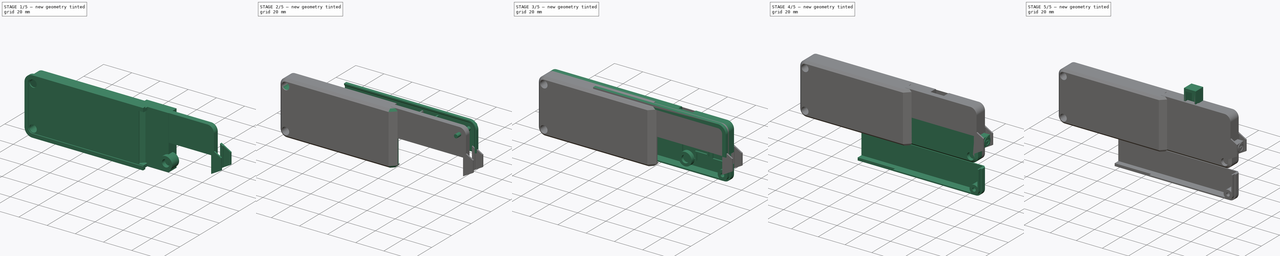
[diagram: build sequence overview — one tinted view per stage of 5, left to right]
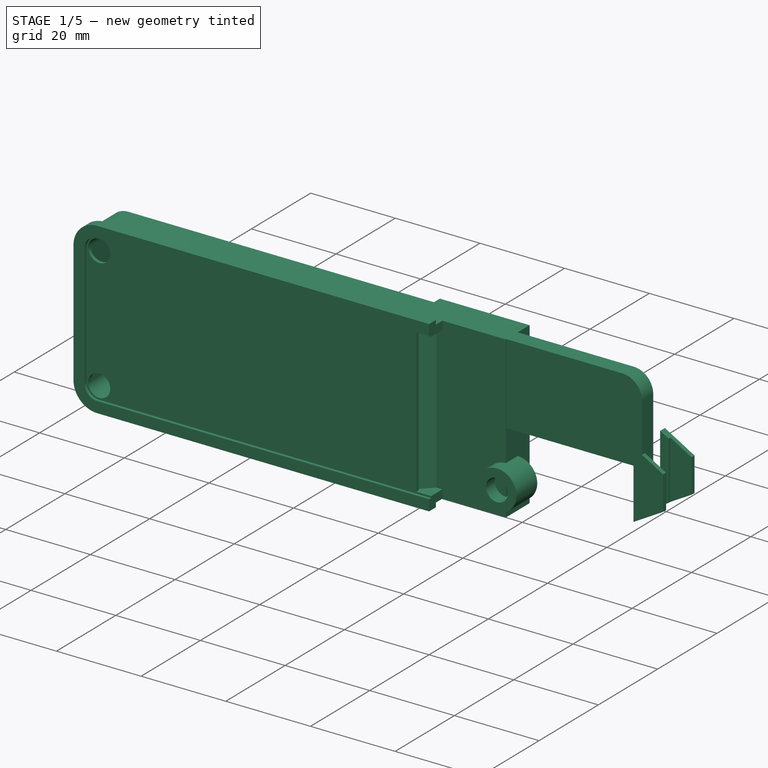
[diagram: stage 1 of 5 — iso view after this stage's code; geometry added in this stage tinted green]
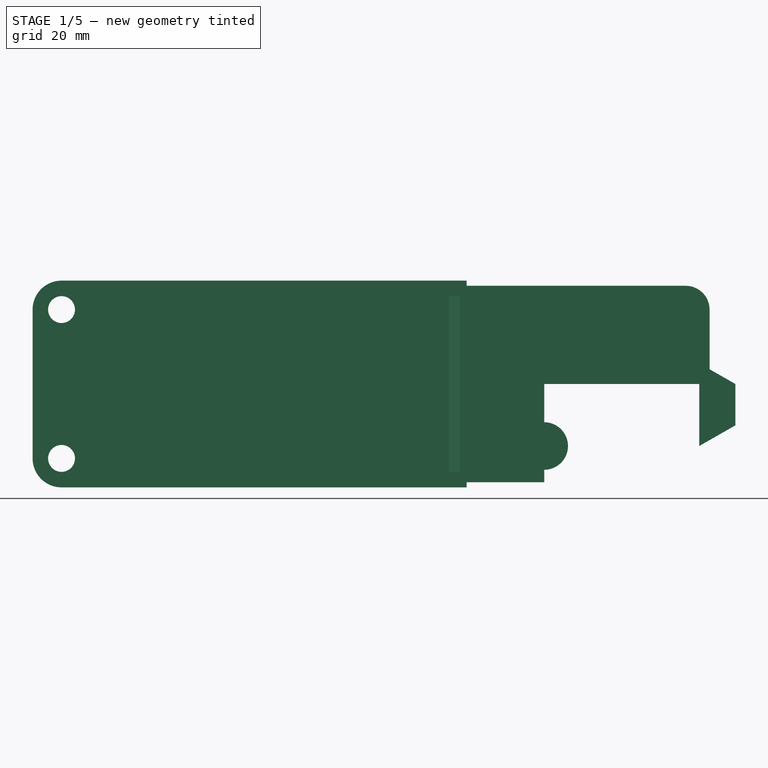
[diagram: stage 1 of 5 — front view after this stage's code; geometry added in this stage tinted green]
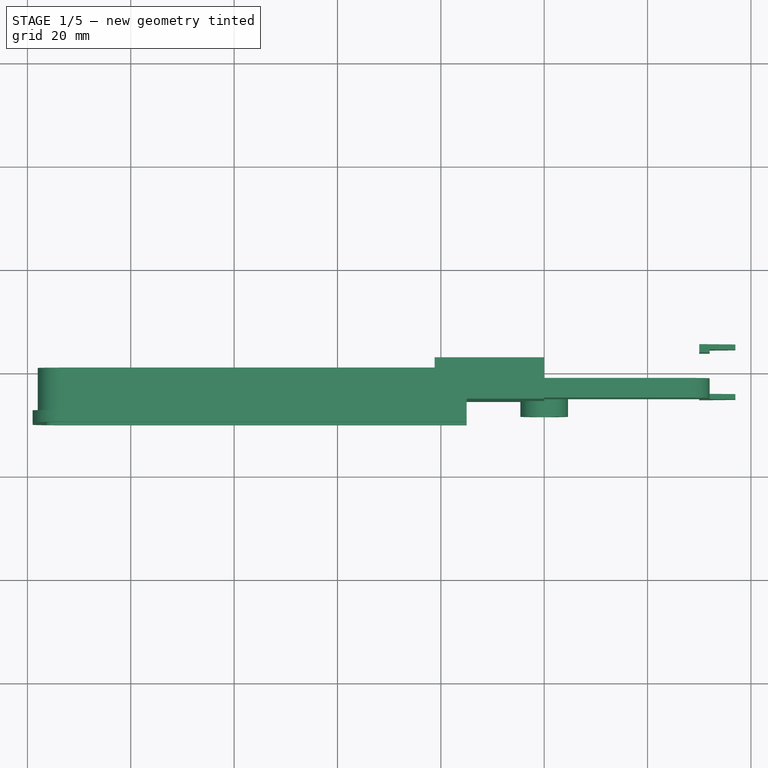
[diagram: stage 1 of 5 — top view after this stage's code; geometry added in this stage tinted green]
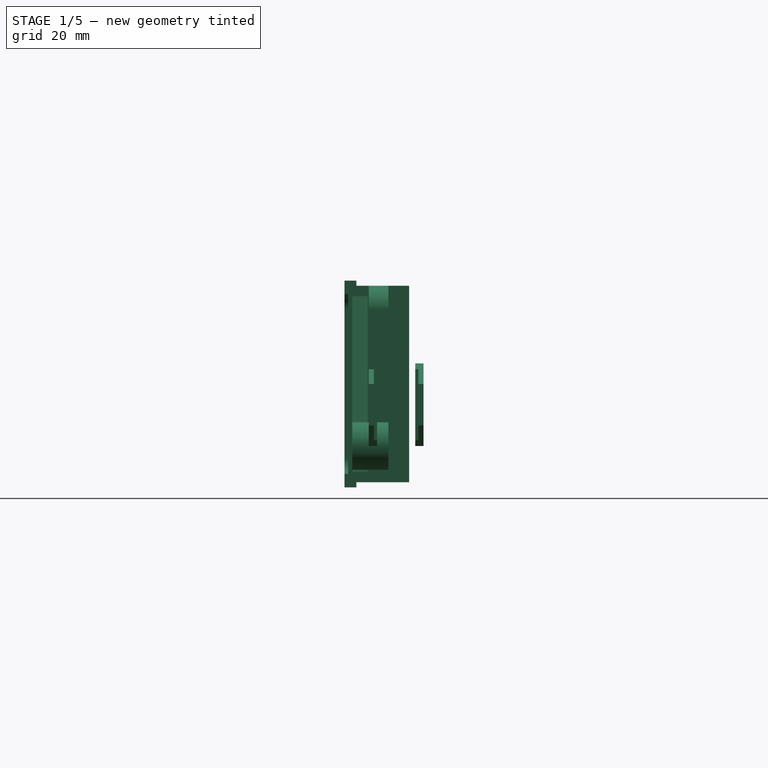
[diagram: stage 1 of 5 — right view after this stage's code; geometry added in this stage tinted green]
FCSTD DOCUMENT  (FreeCAD 0.19R24291 (Git))
Label: cam_transmit
License: All rights reserved
LicenseURL: http://en.wikipedia.org/wiki/All_rights_reserved
objects: Sketcher::SketchObject×37, Part::Extrusion×30, Part::MultiFuse×11, Part::Box×10, Part::Cut×10, PartDesign::FeatureBase×8, PartDesign::Body×8, Part::Mirroring×6, Part::Compound×5, Part::Sweep×4, Part::Cylinder×2, Part::Revolution×2, Spreadsheet::Sheet×1
note: 133 computed .brp shape members not serialized (recipe doc carries the construction recipe); baked Part::Feature solids carry a one-line shape summary decoded from their .brp

FEATURE [Sketcher::SketchObject] Sketch043
  FullyConstrained = true
  Placement = pos=(0,-5.5,0) rot=(1,0,0;1.5708rad)
  sketch-geometry (4):
    g0: LineSegment StartX=-21.2 StartY=31 StartZ=0 EndX=0 EndY=31 EndZ=0
    g1: LineSegment StartX=0 StartY=31 StartZ=0 EndX=0 EndY=-7 EndZ=0
    g2: LineSegment StartX=0 StartY=-7 StartZ=0 EndX=-21.2 EndY=-7 EndZ=0
    g3: LineSegment StartX=-21.2 StartY=-7 StartZ=0 EndX=-21.2 EndY=31 EndZ=0
  constraints (12):
    c: Coincident(g0,g1)
    c: Coincident(g1,g2)
    c: Coincident(g2,g3)
    c: Coincident(g3,g0)
    c: Horizontal(g0)
    c: Horizontal(g2)
    c: Vertical(g1)
    c: Vertical(g3)
    c: DistanceX(g2,g0) = 21.2
    c: DistanceY(g2,g0) = 38
    c: PointOnObject(g1,g-2)
    c: DistanceY(g1,g-1) = 7
FEATURE [Part::Extrusion] Extrude051
  Base = -> Sketch043
  Dir = (0,-1,2e-16)
  DirMode = 2
  FaceMakerClass = Part::FaceMakerBullseye
  LengthFwd = 0
  LengthRev = 8
  Solid = true
  Symmetric = false
FEATURE [Sketcher::SketchObject] Sketch045
  FullyConstrained = true
  Placement = pos=(0,0.5,0) rot=(1,0,0;1.5708rad)
  expr: Constraints[11] = Spreadsheet.screw_r1 + 2
  expr: Constraints[12] = Spreadsheet.screw_r1 + 2
  sketch-geometry (5):
    g0: LineSegment StartX=-93.4 StartY=31 StartZ=0 EndX=-15 EndY=31 EndZ=0
    g1: LineSegment StartX=-15 StartY=-7 StartZ=0 EndX=-93.4 EndY=-7 EndZ=0
    g2: LineSegment StartX=-98 StartY=-2.4 StartZ=0 EndX=-98 EndY=26.4 EndZ=0
    g3: ArcOfCircle CenterX=-93.4 CenterY=26.4 CenterZ=0 NormalX=0 NormalY=0 NormalZ=1 AngleXU=0 Radius=4.6 StartAngle=1.5708 EndAngle=3.14159
    g4: ArcOfCircle CenterX=-93.4 CenterY=-2.4 CenterZ=0 NormalX=0 NormalY=0 NormalZ=1 AngleXU=0 Radius=4.6 StartAngle=3.14159 EndAngle=4.71239
  constraints (18):
    c: Horizontal(g0)
    c: Horizontal(g1)
    c: Vertical(g2)
    c: Coincident(g3,g0)
    c: Coincident(g3,g2)
    c: Coincident(g4,g2)
    c: Coincident(g4,g1)
    c: Vertical(g1,g0)
    c: DistanceY(g1,g-1) = 7
    c: DistanceY(g1,g0) = 38
    c: DistanceX(g2,g0) = 83
    c: Radius(g4) = 4.6
    c: Radius(g3) = 4.6
    c: Vertical(g3,g0)
    c: Horizontal(g2,g3)
    c: Horizontal(g2,g4)
    c: Vertical(g4,g1)
    c: DistanceX(g2) = -98
FEATURE [Sketcher::SketchObject] Sketch046
  FullyConstrained = true
  Placement = pos=(-65,0,0) rot=(0.57735,-0.57735,-0.57735;2.0944rad)
  sketch-geometry (6):
    g0: LineSegment StartX=9.3 StartY=-7 StartZ=0 EndX=-0.5 EndY=-7 EndZ=0
    g1: LineSegment StartX=-0.5 StartY=-7 StartZ=0 EndX=-0.5 EndY=-6.1 EndZ=0
    g2: LineSegment StartX=-0.5 StartY=-6.1 StartZ=0 EndX=1.5 EndY=-6.1 EndZ=0
    g3: LineSegment StartX=9.3 StartY=-7 StartZ=0 EndX=9.3 EndY=-5 EndZ=0
    g4: LineSegment StartX=9.3 StartY=-5 StartZ=0 EndX=1.5 EndY=-5 EndZ=0
    g5: LineSegment StartX=1.5 StartY=-5 StartZ=0 EndX=1.5 EndY=-6.1 EndZ=0
  constraints (18):
    c: Coincident(g0,g1)
    c: Coincident(g1,g2)
    c: Vertical(g1)
    c: DistanceX(g0,g2) = 2
    c: DistanceY(g0,g2) = 0.9
    c: DistanceX(g0,g-1) = 0.5
    c: DistanceY(g0,g-1) = 7
    c: Coincident(g0,g3)
    c: Coincident(g3,g4)
    c: Coincident(g4,g5)
    c: Coincident(g5,g2)
    c: DistanceX(g2,g3) = 7.8
    c: DistanceY(g2,g3) = 1.1
    c: Vertical(g5)
    c: Horizontal(g2)
    c: Horizontal(g0)
    c: Horizontal(g4)
    c: Vertical(g3)
FEATURE [Part::Sweep] Sweep002  label="clam"
  Frenet = false
  Sections = -> [Sketch046]
  Solid = true
  Spine = -> Sketch045
  Transition = 1
FEATURE [Sketcher::SketchObject] Sketch047
  FullyConstrained = true
  Placement = pos=(0,-9.3,0) rot=(1,0,0;1.5708rad)
  expr: Constraints[12] = Spreadsheet.screw_r1 + 2
  expr: Constraints[11] = Spreadsheet.screw_r1 + 2
  expr: Constraints[21] = Spreadsheet.screw_r1
  expr: Constraints[22] = Spreadsheet.screw_r1
  sketch-geometry (8):
    g0: LineSegment StartX=-93.4 StartY=31 StartZ=0 EndX=-18.5 EndY=31 EndZ=0
    g1: LineSegment StartX=-18.5 StartY=-7 StartZ=0 EndX=-93.4 EndY=-7 EndZ=0
    g2: LineSegment StartX=-98 StartY=-2.4 StartZ=0 EndX=-98 EndY=26.4 EndZ=0
    g3: ArcOfCircle CenterX=-93.4 CenterY=26.4 CenterZ=0 NormalX=0 NormalY=0 NormalZ=1 AngleXU=0 Radius=4.6 StartAngle=1.5708 EndAngle=3.14159
    g4: ArcOfCircle CenterX=-93.4 CenterY=-2.4 CenterZ=0 NormalX=0 NormalY=0 NormalZ=1 AngleXU=0 Radius=4.6 StartAngle=3.14159 EndAngle=4.71239
    g5: LineSegment StartX=-18.5 StartY=31 StartZ=0 EndX=-18.5 EndY=-7 EndZ=0
    g6: Circle CenterX=-93.4 CenterY=26.4 CenterZ=0 NormalX=0 NormalY=0 NormalZ=1 AngleXU=0 Radius=2.6
    g7: Circle CenterX=-93.4 CenterY=-2.4 CenterZ=0 NormalX=0 NormalY=0 NormalZ=1 AngleXU=0 Radius=2.6
  constraints (24):
    c: Horizontal(g0)
    c: Horizontal(g1)
    c: Vertical(g2)
    c: Coincident(g3,g0)
    c: Coincident(g3,g2)
    c: Coincident(g4,g2)
    c: Coincident(g4,g1)
    c: Vertical(g1,g0)
    c: DistanceY(g1,g-1) = 7
    c: DistanceY(g1,g0) = 38
    c: DistanceX(g2,g0) = 79.5
    c: Radius(g4) = 4.6
    c: Radius(g3) = 4.6
    c: Vertical(g3,g0)
    c: Horizontal(g2,g3)
    c: Horizontal(g2,g4)
    c: Vertical(g4,g1)
    c: Coincident(g5,g0)
    c: Coincident(g5,g1)
    c: Coincident(g6,g3)
    c: Coincident(g7,g4)
    c: Radius(g7) = 2.6
    c: Radius(g6) = 2.6
    c: DistanceX(g2) = -98
FEATURE [Part::Extrusion] Extrude053  label="bottom009"
  Base = -> Sketch047
  Dir = (0,-1,2e-16)
  DirMode = 2
  FaceMakerClass = Part::FaceMakerBullseye
  LengthFwd = 0
  LengthRev = 0.8
  Solid = true
  Symmetric = false
FEATURE [Sketcher::SketchObject] Sketch048
  FullyConstrained = true
  expr: Constraints[7] = Spreadsheet.screw_r2
  expr: Constraints[8] = Spreadsheet.screw_r1
  sketch-geometry (8):
    g0: LineSegment StartX=1.6 StartY=-1.5 StartZ=0 EndX=1.6 EndY=-2.5 EndZ=0
    g1: LineSegment StartX=2.6 StartY=-8.5 StartZ=0 EndX=4.6 EndY=-8.5 EndZ=0
    g2: LineSegment StartX=4.6 StartY=-8.5 StartZ=0 EndX=4.6 EndY=-1.5 EndZ=0
    g3: LineSegment StartX=4.6 StartY=-1.5 StartZ=0 EndX=1.6 EndY=-1.5 EndZ=0
    g4: LineSegment StartX=1.6 StartY=-2.5 StartZ=0 EndX=0 EndY=-2.5 EndZ=0
    g5: LineSegment StartX=0 StartY=-2.5 StartZ=0 EndX=0 EndY=-2.7 EndZ=0
    g6: LineSegment StartX=0 StartY=-2.7 StartZ=0 EndX=2.6 EndY=-2.7 EndZ=0
    g7: LineSegment StartX=2.6 StartY=-2.7 StartZ=0 EndX=2.6 EndY=-8.5 EndZ=0
  constraints (24):
    c: Vertical(g0)
    c: Horizontal(g1)
    c: Coincident(g1,g2)
    c: Vertical(g2)
    c: Coincident(g2,g3)
    c: Coincident(g3,g0)
    c: Horizontal(g3)
    c: DistanceX(g-1,g0) = 1.6
    c: DistanceX(g-1,g1) = 2.6
    c: DistanceX(g1,g1) = 2
    c: DistanceY(g0,g0) = 1
    c: Coincident(g0,g4)
    c: Horizontal(g4)
    c: Coincident(g4,g5)
    c: PointOnObject(g5,g-2)
    c: Vertical(g5)
    c: Coincident(g5,g6)
    c: Horizontal(g6)
    c: Coincident(g7,g6)
    c: Coincident(g7,g1)
    c: Vertical(g7)
    c: DistanceY(g5,g4) = 0.2
    c: DistanceY(g1,g0) = 6
    c: DistanceY(g1,g-1) = 8.5
FEATURE [Part::Revolution] Revolve001  label="bulge screw hole002"
  Angle = 360
  Axis = (0,1,0)
  Base = (0,0,0)
  FaceMakerClass = Part::FaceMakerBullseye
  Solid = true
  Source = -> Sketch048
  Symmetric = false
FEATURE [PartDesign::FeatureBase] Clone005
  BaseFeature = -> Revolve001
FEATURE [PartDesign::Body] Body005  label="bulge screw hole"
  BaseFeature = -> Revolve001
  Group = -> [Clone005]
  Origin = -> Origin005
  Placement = pos=(-93.4,0,-2.4) rot=(0,0,1;0rad)
  Tip = -> Clone005
FEATURE [PartDesign::FeatureBase] Clone006
  BaseFeature = -> Revolve001
FEATURE [PartDesign::Body] Body006  label="bulge screw hole001"
  BaseFeature = -> Revolve001
  Group = -> [Clone006]
  Origin = -> Origin006
  Placement = pos=(-93.4,0,26.4) rot=(0,0,1;0rad)
  Tip = -> Clone006
FEATURE [Sketcher::SketchObject] Sketch049
  FullyConstrained = true
  Placement = pos=(0,-9.3,0) rot=(1,0,0;1.5708rad)
  expr: Constraints[12] = Spreadsheet.screw_r1 + 2
  expr: Constraints[11] = Spreadsheet.screw_r1 + 2
  sketch-geometry (5):
    g0: LineSegment StartX=-93.4 StartY=31 StartZ=0 EndX=-15 EndY=31 EndZ=0
    g1: LineSegment StartX=-15 StartY=-7 StartZ=0 EndX=-93.4 EndY=-7 EndZ=0
    g2: LineSegment StartX=-98 StartY=-2.4 StartZ=0 EndX=-98 EndY=26.4 EndZ=0
    g3: ArcOfCircle CenterX=-93.4 CenterY=26.4 CenterZ=0 NormalX=0 NormalY=0 NormalZ=1 AngleXU=0 Radius=4.6 StartAngle=1.5708 EndAngle=3.14159
    g4: ArcOfCircle CenterX=-93.4 CenterY=-2.4 CenterZ=0 NormalX=0 NormalY=0 NormalZ=1 AngleXU=0 Radius=4.6 StartAngle=3.14159 EndAngle=4.71239
  constraints (18):
    c: Horizontal(g0)
    c: Horizontal(g1)
    c: Vertical(g2)
    c: Coincident(g3,g0)
    c: Coincident(g3,g2)
    c: Coincident(g4,g2)
    c: Coincident(g4,g1)
    c: Vertical(g1,g0)
    c: DistanceY(g1,g-1) = 7
    c: DistanceY(g1,g0) = 38
    c: DistanceX(g2,g0) = 83
    c: Radius(g4) = 4.6
    c: Radius(g3) = 4.6
    c: Vertical(g3,g0)
    c: Horizontal(g2,g3)
    c: Horizontal(g2,g4)
    c: Vertical(g4,g1)
    c: DistanceX(g2) = -98
FEATURE [Sketcher::SketchObject] Sketch050
  FullyConstrained = true
  Placement = pos=(-57,0,0) rot=(0.57735,0.57735,0.57735;2.0944rad)
  sketch-geometry (5):
    g0: LineSegment StartX=-9.3 StartY=29.4 StartZ=0 EndX=-7.7 EndY=31 EndZ=0
    g1: LineSegment StartX=-7.7 StartY=31 StartZ=0 EndX=-7.7 EndY=32 EndZ=0
    g2: LineSegment StartX=-7.7 StartY=32 StartZ=0 EndX=-10 EndY=32 EndZ=0
    g3: LineSegment StartX=-10 StartY=32 StartZ=0 EndX=-10 EndY=29.4 EndZ=0
    g4: LineSegment StartX=-10 StartY=29.4 StartZ=0 EndX=-9.3 EndY=29.4 EndZ=0
  constraints (15):
    c: DistanceX(g0,g0) = 1.6
    c: DistanceY(g0,g0) = 1.6
    c: Coincident(g0,g1)
    c: Coincident(g1,g2)
    c: Horizontal(g2)
    c: Coincident(g2,g3)
    c: Vertical(g3)
    c: Coincident(g3,g4)
    c: Coincident(g4,g0)
    c: Horizontal(g4)
    c: Vertical(g1)
    c: DistanceX(g3,g0) = 0.7
    c: DistanceY(g1,g1) = 1
    c: DistanceY(g-1,g0) = 31
    c: DistanceX(g0,g-1) = 9.3
FEATURE [Part::Sweep] Sweep003
  Frenet = false
  Sections = -> [Sketch050]
  Solid = true
  Spine = -> Sketch049
  Transition = 1
FEATURE [Sketcher::SketchObject] Sketch051
  FullyConstrained = true
  Placement = pos=(0,0,-5) rot=(1,0,0;3.14159rad)
  sketch-geometry (4):
    g0: LineSegment StartX=-21.2 StartY=9.3 StartZ=0 EndX=-20.2 EndY=9.3 EndZ=0
    g1: LineSegment StartX=-20.2 StartY=9.3 StartZ=0 EndX=-16.4 EndY=5.5 EndZ=0
    g2: LineSegment StartX=-16.4 StartY=5.5 StartZ=0 EndX=-21.2 EndY=5.5 EndZ=0
    g3: LineSegment StartX=-21.2 StartY=5.5 StartZ=0 EndX=-21.2 EndY=9.3 EndZ=0
  constraints (12):
    c: Horizontal(g0)
    c: Coincident(g0,g1)
    c: Coincident(g1,g2)
    c: Horizontal(g2)
    c: Coincident(g2,g3)
    c: Coincident(g3,g0)
    c: DistanceX(g0,g-1) = 20.2
    c: DistanceY(g0,g-1) = -9.3
    c: DistanceX(g1,g0) = -3.8
    c: DistanceY(g1,g0) = 3.8
    c: DistanceX(g0,g0) = 1
    c: Vertical(g3)
FEATURE [Part::Extrusion] Extrude054
  Base = -> Sketch051
  Dir = (0,0,-1)
  DirMode = 2
  FaceMakerClass = Part::FaceMakerBullseye
  LengthFwd = 0
  LengthRev = 34
  Solid = true
  Symmetric = false
FEATURE [Sketcher::SketchObject] Sketch052
  FullyConstrained = false
  Placement = pos=(0,-10,0) rot=(1,0,0;1.5708rad)
  expr: Constraints[10] = Spreadsheet.height / 2 + 2
  expr: Constraints[11] = Spreadsheet.screw_r1 + 2
  sketch-geometry (5):
    g0: ArcOfCircle CenterX=27.4 CenterY=26.3999 CenterZ=0 NormalX=0 NormalY=0 NormalZ=1 AngleXU=0 Radius=4.6 StartAngle=0 EndAngle=1.5708
    g1: LineSegment StartX=32 StartY=26.3999 StartZ=0 EndX=32 EndY=11.9999 EndZ=0
    g2: LineSegment StartX=27.4 StartY=30.9999 StartZ=0 EndX=-20.9 EndY=30.9999 EndZ=0
    g3: LineSegment StartX=-20.9 StartY=30.9999 StartZ=0 EndX=-20.9 EndY=11.9999 EndZ=0
    g4: LineSegment StartX=-20.9 StartY=11.9999 StartZ=0 EndX=32 EndY=11.9999 EndZ=0
  constraints (13):
    c: Horizontal(g0,g0)
    c: Vertical(g0,g0)
    c: Tangent(g0,g1) = 1.5708
    c: Tangent(g0,g2) = -1.5708
    c: Coincident(g2,g3)
    c: Vertical(g3)
    c: Coincident(g3,g4)
    c: Coincident(g4,g1)
    c: Horizontal(g4)
    c: DistanceX(g3,g1) = 52.9
    c: DistanceY(g3,g2) = 19
    c: Radius(g0) = 4.6
    c: DistanceX(g-1,g1) = 32
FEATURE [Part::Extrusion] Extrude056  label="bottom011"
  Base = -> Sketch052
  Dir = (0,-1,2e-16)
  DirMode = 2
  FaceMakerClass = Part::FaceMakerBullseye
  LengthFwd = 0.8
  LengthRev = 0
  Placement = pos=(0,5.5,0) rot=(0,0,1;0rad)
  Solid = true
  Symmetric = false
FEATURE [Sketcher::SketchObject] Sketch053
  FullyConstrained = true
  Placement = pos=(0,-10,0) rot=(1,0,0;1.5708rad)
  expr: Constraints[19] = Spreadsheet.screw_r1
  expr: Constraints[22] = Spreadsheet.height / 2
  sketch-geometry (8):
    g0: ArcOfCircle CenterX=27.4 CenterY=26.4 CenterZ=0 NormalX=0 NormalY=0 NormalZ=1 AngleXU=0 Radius=4.6 StartAngle=0 EndAngle=1.5708
    g1: LineSegment StartX=32 StartY=26.4 StartZ=0 EndX=32 EndY=12 EndZ=0
    g2: LineSegment StartX=32 StartY=12 StartZ=0 EndX=30 EndY=12 EndZ=0
    g3: LineSegment StartX=30 StartY=12 StartZ=0 EndX=30 EndY=26.4 EndZ=0
    g4: LineSegment StartX=27.4 StartY=31 StartZ=0 EndX=-20.9 EndY=31 EndZ=0
    g5: LineSegment StartX=-20.9 StartY=31 StartZ=0 EndX=-20.9 EndY=29 EndZ=0
    g6: LineSegment StartX=-20.9 StartY=29 StartZ=0 EndX=27.4 EndY=29 EndZ=0
    g7: ArcOfCircle CenterX=27.4 CenterY=26.4 CenterZ=0 NormalX=0 NormalY=0 NormalZ=1 AngleXU=0 Radius=2.6 StartAngle=0 EndAngle=1.5708
  constraints (23):
    c: Horizontal(g0,g0)
    c: Vertical(g0,g0)
    c: Tangent(g0,g1) = 1.5708
    c: Coincident(g1,g2)
    c: Horizontal(g2)
    c: Coincident(g2,g3)
    c: Vertical(g3)
    c: Tangent(g0,g4) = -1.5708
    c: Coincident(g4,g5)
    c: Vertical(g5)
    c: Coincident(g5,g6)
    c: Horizontal(g6)
    c: Coincident(g7,g0)
    c: Coincident(g7,g6)
    c: Coincident(g7,g3)
    c: Horizontal(g3,g0)
    c: Vertical(g6,g0)
    c: DistanceX(g2,g1) = 2
    c: DistanceX(g-1,g2) = 30
    c: Radius(g7) = 2.6
    c: DistanceY(g-1,g6) = 29
    c: DistanceX(g5,g3) = 50.9
    c: DistanceY(g2,g6) = 17
FEATURE [Part::Extrusion] Extrude055  label="bottom010"
  Base = -> Sketch053
  Dir = (0,-1,2e-16)
  DirMode = 2
  FaceMakerClass = Part::FaceMakerBullseye
  LengthFwd = 3
  LengthRev = 0
  Placement = pos=(0,8.5,0) rot=(0,0,1;0rad)
  Solid = true
  Symmetric = false
FEATURE [Part::Extrusion] Extrude040  label="bottom003"
  Base = -> Sketch028
  Dir = (0,-1,2e-16)
  DirMode = 2
  FaceMakerClass = Part::FaceMakerBullseye
  LengthFwd = 3
  LengthRev = 0
  Placement = pos=(0,8.5,0) rot=(0,0,1;0rad)
  Solid = true
  Symmetric = false
FEATURE [Part::Extrusion] Extrude041  label="bottom002"
  Base = -> Sketch031
  Dir = (0,-1,2e-16)
  DirMode = 2
  FaceMakerClass = Part::FaceMakerBullseye
  LengthFwd = 0.8
  LengthRev = 0
  Placement = pos=(0,5.5,0) rot=(0,0,1;0rad)
  Solid = true
  Symmetric = false
FEATURE [Sketcher::SketchObject] Sketch054
  FullyConstrained = true
  Placement = pos=(0,5.3,0) rot=(1,0,0;1.5708rad)
  sketch-geometry (4):
    g0: LineSegment StartX=37 StartY=16 StartZ=0 EndX=37 EndY=8 EndZ=0
    g1: LineSegment StartX=37 StartY=8 StartZ=0 EndX=30 EndY=4 EndZ=0
    g2: LineSegment StartX=30 StartY=4 StartZ=0 EndX=30 EndY=20 EndZ=0
    g3: LineSegment StartX=30 StartY=20 StartZ=0 EndX=37 EndY=16 EndZ=0
  constraints (12):
    c: Vertical(g0)
    c: Coincident(g0,g1)
    c: Coincident(g1,g2)
    c: Coincident(g2,g3)
    c: Coincident(g3,g0)
    c: Vertical(g2)
    c: DistanceX(g2) = 30
    c: DistanceY(g2) = 20
    c: DistanceY(g1) = 4
    c: DistanceX(g0) = 37
    c: DistanceY(g0) = 8
    c: DistanceY(g0) = 16
FEATURE [Part::Extrusion] Extrude057
  Base = -> Sketch054
  Dir = (0,-1,-2e-16)
  DirMode = 2
  FaceMakerClass = Part::FaceMakerBullseye
  LengthFwd = 1.6
  LengthRev = 0
  Solid = true
  Symmetric = false
FEATURE [Sketcher::SketchObject] Sketch055
  FullyConstrained = true
  Placement = pos=(0,4.3,0) rot=(1,0,0;1.5708rad)
  sketch-geometry (4):
    g0: LineSegment StartX=38 StartY=20 StartZ=0 EndX=38 EndY=4 EndZ=0
    g1: LineSegment StartX=38 StartY=4 StartZ=0 EndX=32 EndY=4 EndZ=0
    g2: LineSegment StartX=32 StartY=4 StartZ=0 EndX=32 EndY=20 EndZ=0
    g3: LineSegment StartX=32 StartY=20 StartZ=0 EndX=38 EndY=20 EndZ=0
  constraints (12):
    c: Vertical(g0)
    c: Coincident(g0,g1)
    c: Coincident(g1,g2)
    c: Coincident(g2,g3)
    c: Coincident(g3,g0)
    c: Vertical(g2)
    c: DistanceX(g2) = 32
    c: DistanceY(g2) = 20
    c: DistanceY(g1) = 4
    c: DistanceX(g0) = 38
    c: Horizontal(g1)
    c: Horizontal(g3)
FEATURE [Part::Extrusion] Extrude052
  Base = -> Sketch055
  Dir = (0,-1,2e-16)
  DirMode = 2
  FaceMakerClass = Part::FaceMakerBullseye
  LengthFwd = 1.6
  LengthRev = 0
  Solid = true
  Symmetric = false
FEATURE [Part::Cut] Cut029  label="switch protector"
  Base = -> Extrude057
  Placement = pos=(0,0,-4) rot=(0,0,1;0rad)
  Tool = -> Extrude052
FEATURE [PartDesign::FeatureBase] Clone007
  BaseFeature = -> Cut029
  Placement = pos=(0,0,-4) rot=(0,0,1;0rad)
FEATURE [PartDesign::FeatureBase] Clone008
  BaseFeature = -> Cut029
  Placement = pos=(0,0,-4) rot=(0,0,1;0rad)
FEATURE [PartDesign::Body] Body008  label="switch protector002"
  BaseFeature = -> Cut029
  Group = -> [Clone008]
  Origin = -> Origin008
  Tip = -> Clone008
FEATURE [Part::Mirroring] Part__Mirroring005  label="switch protector002 (Mirror #6)"
  Base = (0,0,0)
  Normal = (0,1,0)
  Source = -> Body008
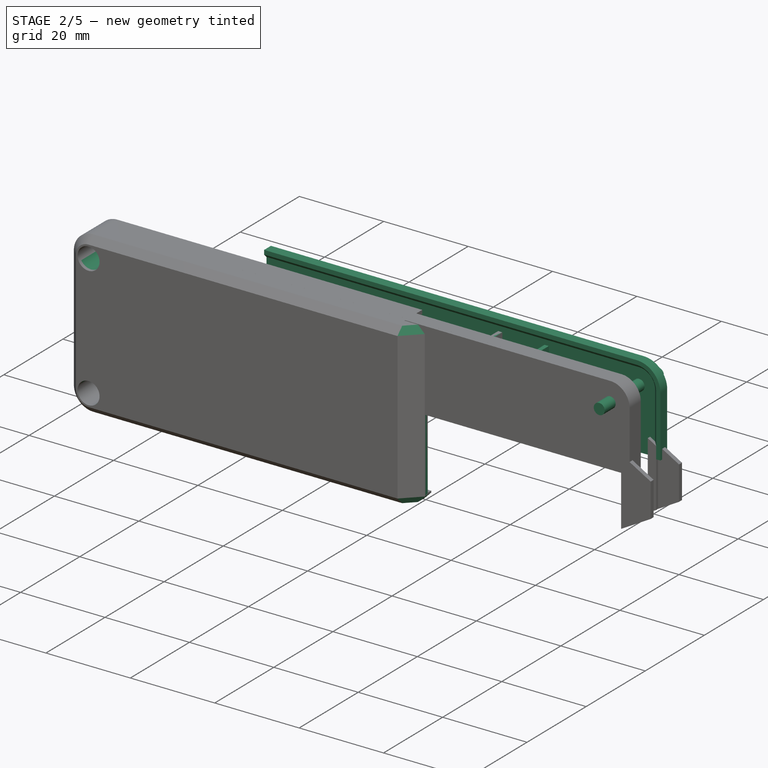
[diagram: stage 2 of 5 — iso view after this stage's code; geometry added in this stage tinted green]
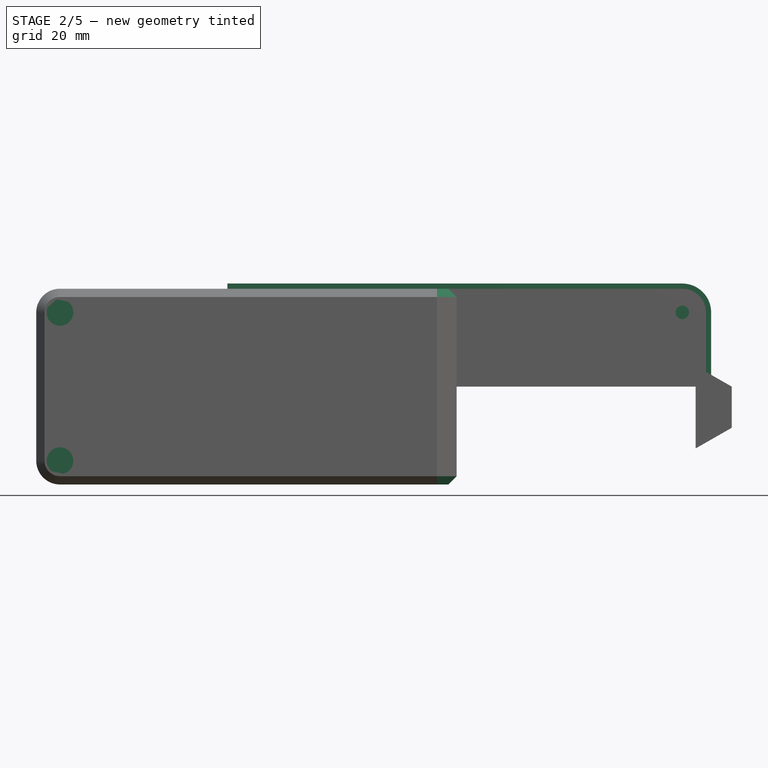
[diagram: stage 2 of 5 — front view after this stage's code; geometry added in this stage tinted green]
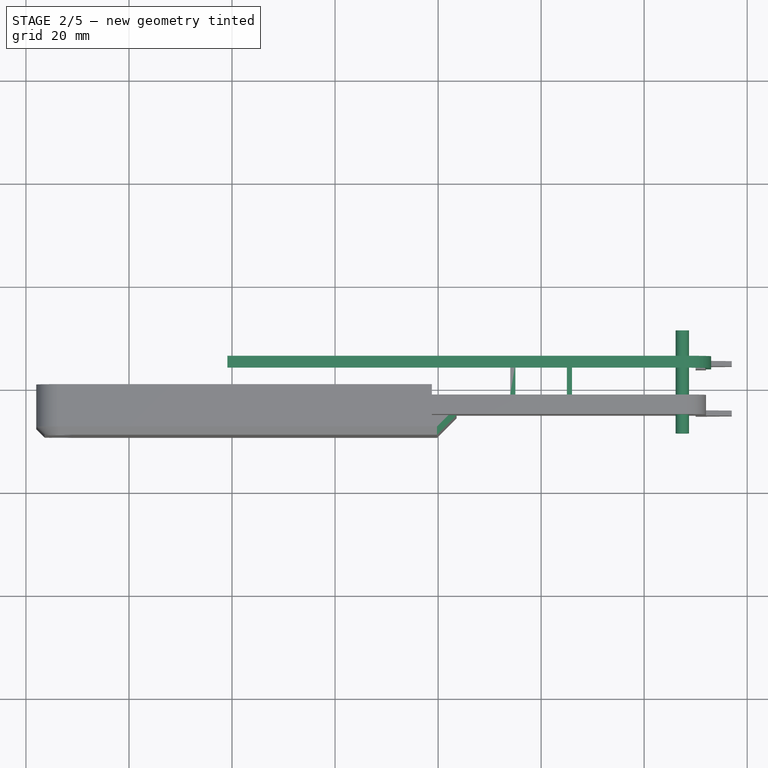
[diagram: stage 2 of 5 — top view after this stage's code; geometry added in this stage tinted green]
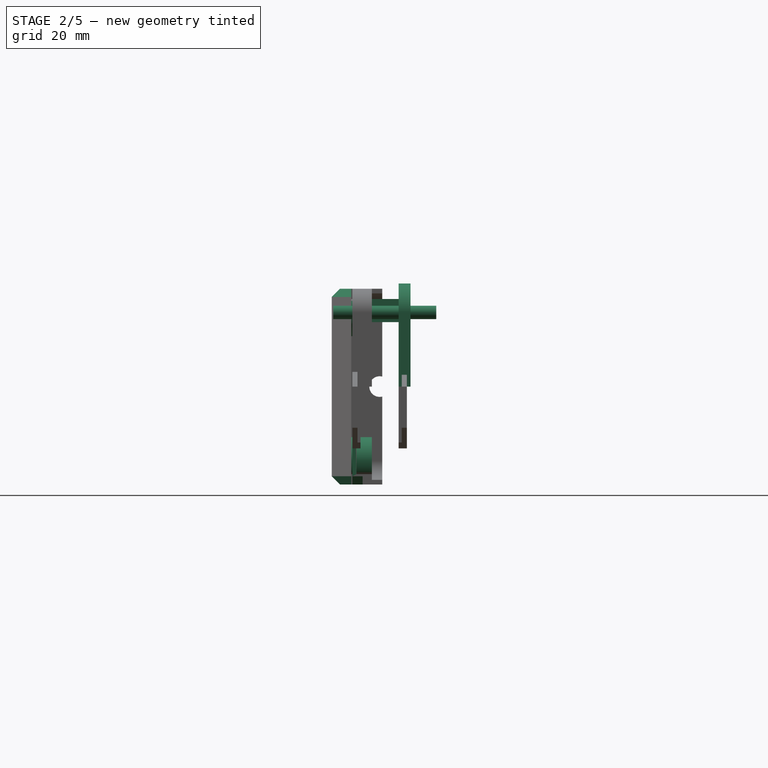
[diagram: stage 2 of 5 — right view after this stage's code; geometry added in this stage tinted green]
FEATURE [Sketcher::SketchObject] Sketch005
  FullyConstrained = true
  Placement = pos=(0,-5,0) rot=(1,0,0;1.5708rad)
  expr: Constraints[0] = Spreadsheet.screw_r3
  sketch-geometry (1):
    g0: Circle CenterX=27.4 CenterY=26.4 CenterZ=0 NormalX=0 NormalY=0 NormalZ=1 AngleXU=0 Radius=1.3
  constraints (3):
    c: Radius(g0) = 1.3
    c: DistanceX(g0,g-1) = -27.4
    c: DistanceY(g0,g-1) = -26.4
FEATURE [Part::Extrusion] Extrude003  label="top screw hole"
  Base = -> Sketch005
  Dir = (0,-1,2e-16)
  DirMode = 2
  FaceMakerClass = Part::FaceMakerBullseye
  LengthFwd = 0
  LengthRev = 20
  Placement = pos=(0,-4,0) rot=(0,0,1;0rad)
  Solid = true
  Symmetric = false
FEATURE [Sketcher::SketchObject] Sketch035
  FullyConstrained = true
  Placement = pos=(0,0,0) rot=(0.57735,0.57735,0.57735;2.0944rad)
  sketch-geometry (5):
    g0: LineSegment StartX=5.3 StartY=29.4 StartZ=0 EndX=3.7 EndY=31 EndZ=0
    g1: LineSegment StartX=3.7 StartY=31 StartZ=0 EndX=3.7 EndY=32 EndZ=0
    g2: LineSegment StartX=3.7 StartY=32 StartZ=0 EndX=6 EndY=32 EndZ=0
    g3: LineSegment StartX=6 StartY=32 StartZ=0 EndX=6 EndY=29.4 EndZ=0
    g4: LineSegment StartX=6 StartY=29.4 StartZ=0 EndX=5.3 EndY=29.4 EndZ=0
  constraints (15):
    c: DistanceX(g0,g0) = -1.6
    c: DistanceY(g0,g0) = 1.6
    c: Coincident(g0,g1)
    c: Vertical(g1)
    c: Coincident(g1,g2)
    c: Horizontal(g2)
    c: Coincident(g2,g3)
    c: Vertical(g3)
    c: Coincident(g4,g3)
    c: Coincident(g4,g0)
    c: Horizontal(g4)
    c: DistanceY(g-1,g0) = 31
    c: DistanceX(g-1,g0) = 5.3
    c: DistanceX(g0,g3) = 0.7
    c: DistanceY(g0,g1) = 1
FEATURE [Part::Sweep] Sweep001
  Frenet = false
  Sections = -> [Sketch035]
  Solid = true
  Spine = -> Sketch034
  Transition = 1
FEATURE [Part::MultiFuse] Fusion030
  Shapes = -> [Extrude003,Sweep001]
FEATURE [Sketcher::SketchObject] Sketch036
  FullyConstrained = true
  Placement = pos=(0,0,40) rot=(0,0,1;0rad)
  sketch-geometry (4):
    g0: LineSegment StartX=-5 StartY=4.5 StartZ=0 EndX=5 EndY=4.5 EndZ=0
    g1: LineSegment StartX=5 StartY=4.5 StartZ=0 EndX=5 EndY=-4.5 EndZ=0
    g2: LineSegment StartX=5 StartY=-4.5 StartZ=0 EndX=-5 EndY=-4.5 EndZ=0
    g3: LineSegment StartX=-5 StartY=-4.5 StartZ=0 EndX=-5 EndY=4.5 EndZ=0
  constraints (12):
    c: Coincident(g0,g1)
    c: Coincident(g1,g2)
    c: Coincident(g2,g3)
    c: Coincident(g3,g0)
    c: Horizontal(g0)
    c: Horizontal(g2)
    c: Vertical(g1)
    c: Vertical(g3)
    c: DistanceX(g2,g0) = 10
    c: DistanceY(g2,g0) = 9
    c: DistanceY(g-1,g0) = 4.5
    c: DistanceX(g-1,g0) = 5
FEATURE [Part::Extrusion] Extrude044
  Base = -> Sketch036
  Dir = (0,0,1)
  DirMode = 2
  FaceMakerClass = Part::FaceMakerBullseye
  LengthFwd = 10
  LengthRev = 0
  Placement = pos=(0,0,-15.5) rot=(0,0,1;0rad)
  Solid = true
  Symmetric = false
FEATURE [Sketcher::SketchObject] Sketch037
  FullyConstrained = true
  Placement = pos=(35,0,0) rot=(0.57735,0.57735,0.57735;2.0944rad)
  sketch-geometry (4):
    g0: LineSegment StartX=-3.75 StartY=11.75 StartZ=0 EndX=3.75 EndY=11.75 EndZ=0
    g1: LineSegment StartX=3.75 StartY=11.75 StartZ=0 EndX=3.75 EndY=4.25 EndZ=0
    g2: LineSegment StartX=3.75 StartY=4.25 StartZ=0 EndX=-3.75 EndY=4.25 EndZ=0
    g3: LineSegment StartX=-3.75 StartY=4.25 StartZ=0 EndX=-3.75 EndY=11.75 EndZ=0
  constraints (12):
    c: Coincident(g0,g1)
    c: Coincident(g1,g2)
    c: Coincident(g2,g3)
    c: Coincident(g3,g0)
    c: Horizontal(g0)
    c: Horizontal(g2)
    c: Vertical(g1)
    c: Vertical(g3)
    c: DistanceX(g2,g0) = 7.5
    c: DistanceY(g2,g0) = 7.5
    c: DistanceX(g2,g-1) = 3.75
    c: DistanceY(g2,g-1) = -4.25
FEATURE [Part::Extrusion] Extrude045
  Base = -> Sketch037
  Dir = (1,0,0)
  DirMode = 2
  FaceMakerClass = Part::FaceMakerBullseye
  LengthFwd = 10
  LengthRev = 0
  Placement = pos=(-9.5,0,0) rot=(0,0,1;0rad)
  Solid = true
  Symmetric = false
FEATURE [Part::Cylinder] Cylinder001  label="battery cable"
  Angle = 360
  AttacherType = Attacher::AttachEngine3D
  Height = 10
  Placement = pos=(-92.5,0,12) rot=(0,-1,0;1.5708rad)
  Radius = 2
FEATURE [Part::MultiFuse] Fusion033  label="common sub"
  Shapes = -> [Cylinder001,Extrude045,Extrude044]
FEATURE [Sketcher::SketchObject] Sketch038
  FullyConstrained = false
  Placement = pos=(0,0,0) rot=(1,0,0;1.5708rad)
  sketch-geometry (8):
    g0: LineSegment StartX=5 StartY=29 StartZ=0 EndX=6 EndY=29 EndZ=0
    g1: LineSegment StartX=6 StartY=29 StartZ=0 EndX=6 EndY=24.5008 EndZ=0
    g2: LineSegment StartX=6 StartY=24.5008 StartZ=0 EndX=5 EndY=24.5008 EndZ=0
    g3: LineSegment StartX=5 StartY=24.5008 StartZ=0 EndX=5 EndY=29 EndZ=0
    g4: LineSegment StartX=-5 StartY=29 StartZ=0 EndX=-6 EndY=29 EndZ=0
    g5: LineSegment StartX=-6 StartY=29 StartZ=0 EndX=-6 EndY=24.5 EndZ=0
    g6: LineSegment StartX=-6 StartY=24.5 StartZ=0 EndX=-5 EndY=24.5 EndZ=0
    g7: LineSegment StartX=-5 StartY=24.5 StartZ=0 EndX=-5 EndY=29 EndZ=0
  constraints (21):
    c: Coincident(g0,g1)
    c: Coincident(g1,g2)
    c: Coincident(g2,g3)
    c: Coincident(g3,g0)
    c: Horizontal(g0)
    c: Horizontal(g2)
    c: Vertical(g1)
    c: Vertical(g3)
    c: Coincident(g4,g5)
    c: Coincident(g5,g6)
    c: Coincident(g6,g7)
    c: Coincident(g7,g4)
    c: Horizontal(g4)
    c: Horizontal(g6)
    c: Vertical(g5)
    c: Vertical(g7)
    c: DistanceX(g5,g0) = 12
    c: DistanceY(g5,g0) = 4.5
    c: Horizontal(g0,g4)
    c: DistanceX(g0,g-1) = -6
    c: DistanceY(g0,g-1) = -29
FEATURE [Part::Extrusion] Extrude046
  Base = -> Sketch038
  Dir = (0,-1,3e-16)
  DirMode = 2
  FaceMakerClass = Part::FaceMakerBullseye
  LengthFwd = 6
  LengthRev = 0
  Placement = pos=(0,4.5,0) rot=(0,0,1;0rad)
  Solid = true
  Symmetric = false
FEATURE [Sketcher::SketchObject] Sketch039
  FullyConstrained = true
  Placement = pos=(0,-5.3,0) rot=(1,0,0;1.5708rad)
  sketch-geometry (6):
    g0: LineSegment StartX=-58 StartY=31 StartZ=0 EndX=-56.4 EndY=29.4 EndZ=0
    g1: LineSegment StartX=-56.4 StartY=29.4 StartZ=0 EndX=-56.4 EndY=-5.4 EndZ=0
    g2: LineSegment StartX=-56.4 StartY=-5.4 StartZ=0 EndX=-58 EndY=-7 EndZ=0
    g3: LineSegment StartX=-58 StartY=31 StartZ=0 EndX=-60.9 EndY=31 EndZ=0
    g4: LineSegment StartX=-60.9 StartY=31 StartZ=0 EndX=-60.9 EndY=-7 EndZ=0
    g5: LineSegment StartX=-60.9 StartY=-7 StartZ=0 EndX=-58 EndY=-7 EndZ=0
  constraints (18):
    c: Coincident(g0,g1)
    c: Vertical(g1)
    c: Coincident(g1,g2)
    c: Coincident(g0,g3)
    c: Horizontal(g3)
    c: Coincident(g3,g4)
    c: Vertical(g4)
    c: Coincident(g4,g5)
    c: Coincident(g5,g2)
    c: Horizontal(g5)
    c: DistanceX(g3,g-1) = 60.9
    c: DistanceY(g3,g-1) = -31
    c: DistanceX(g3,g0) = 4.5
    c: DistanceY(g3,g0) = -1.6
    c: DistanceY(g4,g1) = 1.6
    c: DistanceX(g0,g0) = 1.6
    c: DistanceY(g4,g3) = 38
    c: DistanceX(g2,g1) = 1.6
FEATURE [Part::Extrusion] Extrude048
  Base = -> Sketch039
  Dir = (0,-1,2e-16)
  DirMode = 2
  FaceMakerClass = Part::FaceMakerBullseye
  LengthFwd = 0
  LengthRev = 2
  Solid = true
  Symmetric = false
FEATURE [Sketcher::SketchObject] Sketch040
  FullyConstrained = false
  Placement = pos=(0,-4.5,0) rot=(1,0,0;1.5708rad)
  sketch-geometry (4):
    g0: LineSegment StartX=-62 StartY=29 StartZ=0 EndX=-56 EndY=29 EndZ=0
    g1: LineSegment StartX=-56 StartY=29 StartZ=0 EndX=-56 EndY=-5 EndZ=0
    g2: LineSegment StartX=-56 StartY=-5 StartZ=0 EndX=-62 EndY=-5 EndZ=0
    g3: LineSegment StartX=-62 StartY=-5 StartZ=0 EndX=-62 EndY=29 EndZ=0
  constraints (8):
    c: Coincident(g0,g1)
    c: Coincident(g1,g2)
    c: Coincident(g2,g3)
    c: Coincident(g3,g0)
    c: Horizontal(g0)
    c: Horizontal(g2)
    c: Vertical(g1)
    c: Vertical(g3)
FEATURE [Part::Extrusion] Extrude049
  Base = -> Sketch040
  Dir = (0,-1,2e-16)
  DirMode = 2
  FaceMakerClass = Part::FaceMakerBullseye
  LengthFwd = 0
  LengthRev = 2
  Solid = true
  Symmetric = false
FEATURE [Part::Cut] Cut027  label="bulge overlap"
  Base = -> Extrude048
  Placement = pos=(40,0,0) rot=(0,0,1;0rad)
  Tool = -> Extrude049
FEATURE [Sketcher::SketchObject] Sketch041
  FullyConstrained = true
  Placement = pos=(0,-5.5,0) rot=(1,0,0;1.5708rad)
  sketch-geometry (8):
    g0: LineSegment StartX=-18 StartY=32 StartZ=0 EndX=-18 EndY=31 EndZ=0
    g1: LineSegment StartX=-18 StartY=31 StartZ=0 EndX=-16.4 EndY=29.4 EndZ=0
    g2: LineSegment StartX=-16.4 StartY=29.4 StartZ=0 EndX=-16.4 EndY=-5.4 EndZ=0
    g3: LineSegment StartX=-16.4 StartY=-5.4 StartZ=0 EndX=-18 EndY=-7 EndZ=0
    g4: LineSegment StartX=-18 StartY=-7 StartZ=0 EndX=-18 EndY=-8 EndZ=0
    g5: LineSegment StartX=-18 StartY=-8 StartZ=0 EndX=2 EndY=-8 EndZ=0
    g6: LineSegment StartX=2 StartY=-8 StartZ=0 EndX=2 EndY=32 EndZ=0
    g7: LineSegment StartX=2 StartY=32 StartZ=0 EndX=-18 EndY=32 EndZ=0
  constraints (24):
    c: Vertical(g0)
    c: Coincident(g0,g1)
    c: Coincident(g1,g2)
    c: Vertical(g2)
    c: Coincident(g2,g3)
    c: Coincident(g3,g4)
    c: Vertical(g4)
    c: Coincident(g4,g5)
    c: Horizontal(g5)
    c: Coincident(g5,g6)
    c: Vertical(g6)
    c: Coincident(g6,g7)
    c: Coincident(g7,g0)
    c: Horizontal(g7)
    c: DistanceX(g3,g-1) = 18
    c: DistanceY(g3,g-1) = 7
    c: DistanceX(g3,g2) = 1.6
    c: DistanceY(g3,g2) = 1.6
    c: Vertical(g0,g3)
    c: DistanceY(g3,g0) = 38
    c: DistanceY(g1,g0) = 1.6
    c: DistanceY(g0,g0) = 1
    c: DistanceY(g4,g3) = 1
    c: DistanceX(g6) = 2
FEATURE [Part::Extrusion] Extrude050
  Base = -> Sketch041
  Dir = (-1,-1,0)
  DirMode = 0
  FaceMakerClass = Part::FaceMakerBullseye
  LengthFwd = 6
  LengthRev = 0
  Solid = true
  Symmetric = false
FEATURE [Part::MultiFuse] Fusion035
  Shapes = -> [Extrude051,Extrude050,Fusion033,Sweep003]
FEATURE [Part::MultiFuse] Fusion034
  Shapes = -> [Sweep002,Extrude053,Body005,Body006,Extrude054]
FEATURE [Part::Cut] Cut028  label="bulge"
  Base = -> Fusion034
  Tool = -> Fusion035
FEATURE [Part::Compound] Compound005  label="bulge001"
  Links = -> [Cut028]
FEATURE [Sketcher::SketchObject] Sketch031
  FullyConstrained = false
  Placement = pos=(0,-10,0) rot=(1,0,0;1.5708rad)
  expr: Constraints[11] = Spreadsheet.screw_r1 + 2
  expr: Constraints[10] = Spreadsheet.height / 2 + 2
  expr: Constraints[9] = Spreadsheet.bulge_start
  sketch-geometry (5):
    g0: ArcOfCircle CenterX=27.4 CenterY=26.4 CenterZ=0 NormalX=0 NormalY=0 NormalZ=1 AngleXU=0 Radius=4.6 StartAngle=0 EndAngle=1.5708
    g1: LineSegment StartX=32 StartY=26.4 StartZ=0 EndX=32 EndY=12 EndZ=0
    g2: LineSegment StartX=27.4 StartY=31 StartZ=0 EndX=-60.9 EndY=31 EndZ=0
    g3: LineSegment StartX=-60.9 StartY=31 StartZ=0 EndX=-60.9 EndY=12 EndZ=0
    g4: LineSegment StartX=-60.9 StartY=12 StartZ=0 EndX=32 EndY=12 EndZ=0
  constraints (13):
    c: Horizontal(g0,g0)
    c: Vertical(g0,g0)
    c: Tangent(g0,g1) = 1.5708
    c: Tangent(g0,g2) = -1.5708
    c: Coincident(g2,g3)
    c: Vertical(g3)
    c: Coincident(g3,g4)
    c: Coincident(g4,g1)
    c: Horizontal(g4)
    c: DistanceX(g3,g1) = 92.9
    c: DistanceY(g3,g2) = 19
    c: Radius(g0) = 4.6
    c: DistanceX(g-1,g1) = 32
FEATURE [Part::Extrusion] Extrude042  label="top002"
  Base = -> Sketch031
  Dir = (0,-1,2e-16)
  DirMode = 2
  FaceMakerClass = Part::FaceMakerBullseye
  LengthFwd = 0.8
  LengthRev = 0
  Placement = pos=(0,15.3,0) rot=(0,0,1;0rad)
  Solid = true
  Symmetric = false
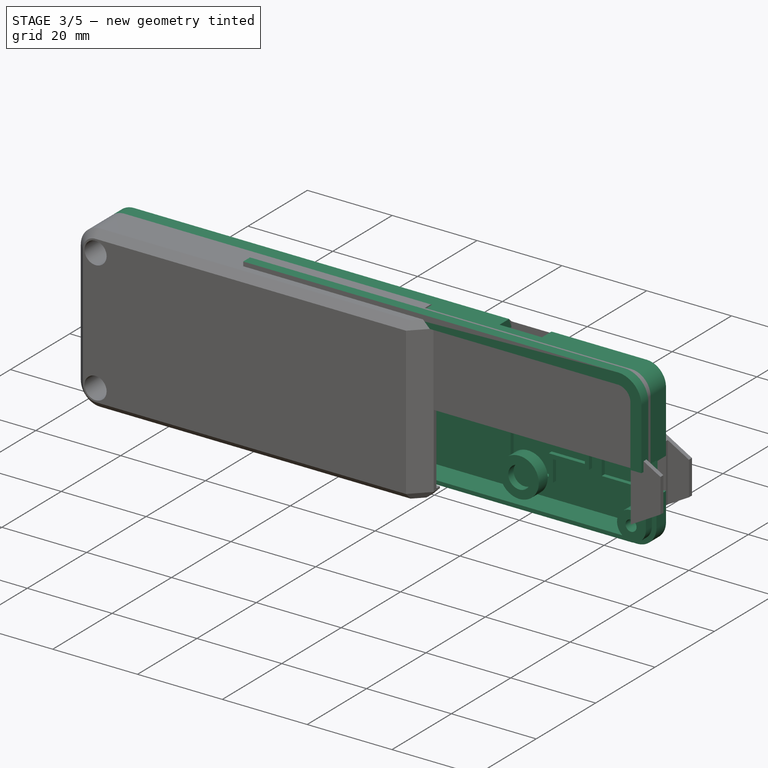
[diagram: stage 3 of 5 — iso view after this stage's code; geometry added in this stage tinted green]
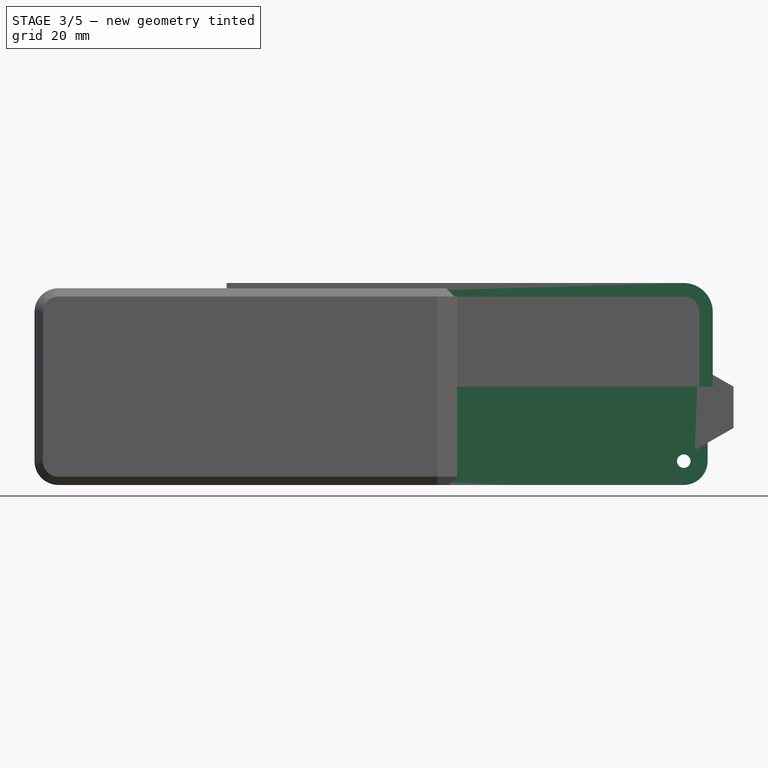
[diagram: stage 3 of 5 — front view after this stage's code; geometry added in this stage tinted green]
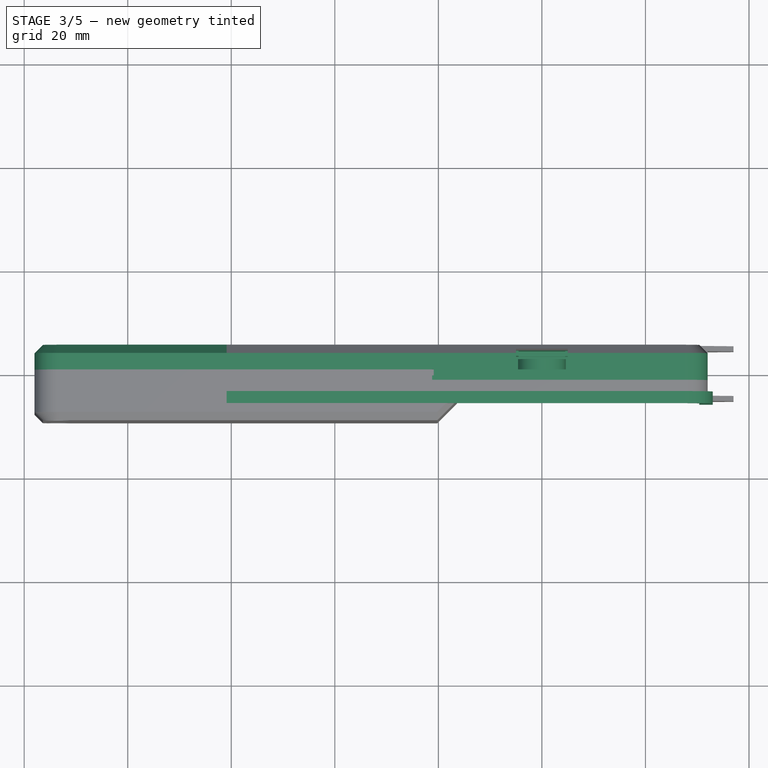
[diagram: stage 3 of 5 — top view after this stage's code; geometry added in this stage tinted green]
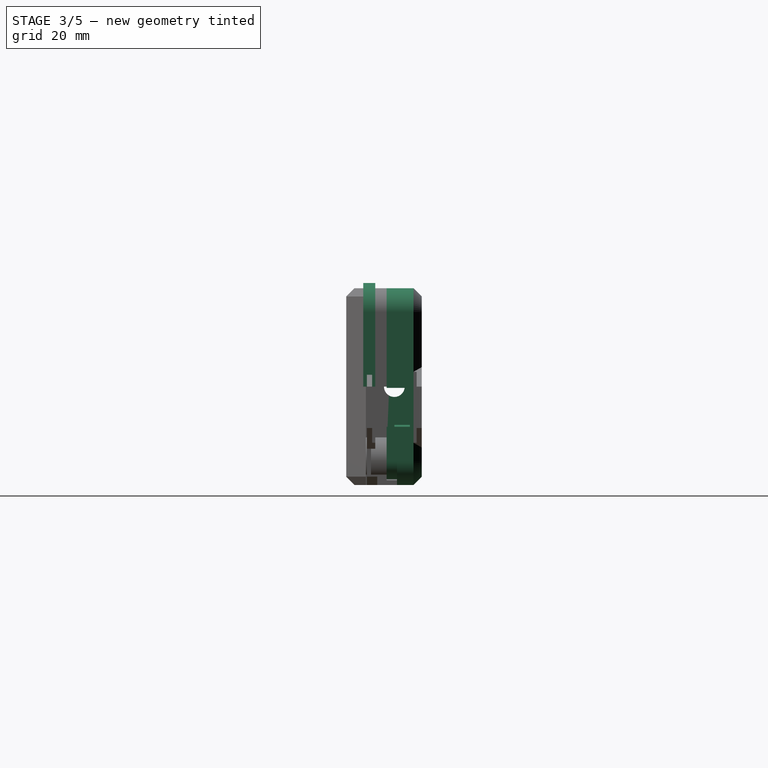
[diagram: stage 3 of 5 — right view after this stage's code; geometry added in this stage tinted green]
FEATURE [Sketcher::SketchObject] Sketch001
  FullyConstrained = true
  Placement = pos=(0,0,0) rot=(1,0,0;1.5708rad)
  sketch-geometry (24):
    g0: LineSegment StartX=4.5 StartY=5 StartZ=0 EndX=13 EndY=5 EndZ=0
    g1: LineSegment StartX=4.5 StartY=0 StartZ=0 EndX=4.5 EndY=5 EndZ=0
    g2: LineSegment StartX=4.5 StartY=0 StartZ=0 EndX=-4.5 EndY=0 EndZ=0
    g3: LineSegment StartX=-5.5 StartY=-1 StartZ=0 EndX=5.5 EndY=-1 EndZ=0
    g4: LineSegment StartX=13 StartY=5 StartZ=0 EndX=13 EndY=24.5 EndZ=0
    g5: LineSegment StartX=13 StartY=24.5 StartZ=0 EndX=14 EndY=24.5 EndZ=0
    g6: LineSegment StartX=14 StartY=24.5 StartZ=0 EndX=14 EndY=4 EndZ=0
    g7: LineSegment StartX=-4.5 StartY=0 StartZ=0 EndX=-4.5 EndY=8.5 EndZ=0
    g8: LineSegment StartX=-4.5 StartY=8.5 StartZ=0 EndX=-5.5 EndY=8.5 EndZ=0
    g9: LineSegment StartX=-5.5 StartY=8.5 StartZ=0 EndX=-5.5 EndY=-1 EndZ=0
    g10: LineSegment StartX=5.5 StartY=-1 StartZ=0 EndX=5.5 EndY=4 EndZ=0
    g11: LineSegment StartX=5.5 StartY=4 StartZ=0 EndX=14 EndY=4 EndZ=0
    g12: LineSegment StartX=25.5 StartY=12.5 StartZ=0 EndX=17 EndY=12.5 EndZ=0
    g13: LineSegment StartX=17 StartY=12.5 StartZ=0 EndX=17 EndY=3.5 EndZ=0
    g14: LineSegment StartX=17 StartY=3.5 StartZ=0 EndX=25.5 EndY=3.5 EndZ=0
    g15: LineSegment StartX=25.5 StartY=3.5 StartZ=0 EndX=25.5 EndY=2.5 EndZ=0
    g16: LineSegment StartX=25.5 StartY=2.5 StartZ=0 EndX=16 EndY=2.5 EndZ=0
    g17: LineSegment StartX=16 StartY=2.5 StartZ=0 EndX=16 EndY=13.5 EndZ=0
    g18: LineSegment StartX=16 StartY=13.5 StartZ=0 EndX=25.5 EndY=13.5 EndZ=0
    g19: LineSegment StartX=25.5 StartY=13.5 StartZ=0 EndX=25.5 EndY=12.5 EndZ=0
    g20: LineSegment StartX=-7 StartY=24.5 StartZ=0 EndX=-8 EndY=24.5 EndZ=0
    g21: LineSegment StartX=-8 StartY=24.5 StartZ=0 EndX=-8 EndY=14 EndZ=0
    g22: LineSegment StartX=-8 StartY=14 StartZ=0 EndX=-7 EndY=14 EndZ=0
    g23: LineSegment StartX=-7 StartY=14 StartZ=0 EndX=-7 EndY=24.5 EndZ=0
  constraints (72):
    c: Coincident(g1,g0)
    c: Horizontal(g0)
    c: Vertical(g1)
    c: Horizontal(g2)
    c: Horizontal(g3)
    c: Coincident(g0,g4)
    c: Vertical(g4)
    c: Coincident(g4,g5)
    c: Horizontal(g5)
    c: Coincident(g5,g6)
    c: Vertical(g6)
    c: Coincident(g2,g7)
    c: Vertical(g7)
    c: Coincident(g7,g8)
    c: Horizontal(g8)
    c: Coincident(g8,g9)
    c: Coincident(g9,g3)
    c: Vertical(g9)
    c: DistanceX(g8,g8) = 1
    c: DistanceX(g5,g5) = 1
    c: DistanceY(g3,g2) = 1
    c: Coincident(g1,g2)
    c: Coincident(g3,g10)
    c: Vertical(g10)
    c: Coincident(g10,g11)
    c: Coincident(g11,g6)
    c: Horizontal(g11)
    c: DistanceX(g0,g10) = 1
    c: DistanceY(g2,g7) = 8.5
    c: DistanceX(g0,g0) = 8.5
    c: DistanceX(g2,g1) = 9
    c: DistanceY(g1,g0) = 5
    c: DistanceY(g6,g0) = 1
    c: DistanceX(g2,g-1) = 4.5
    c: PointOnObject(g2,g-1)
    c: Horizontal(g12)
    c: Coincident(g12,g13)
    c: Vertical(g13)
    c: Coincident(g13,g14)
    c: Horizontal(g14)
    c: Coincident(g14,g15)
    c: Vertical(g15)
    c: Coincident(g15,g16)
    c: Horizontal(g16)
    c: Coincident(g16,g17)
    c: Vertical(g17)
    c: Coincident(g17,g18)
    c: Horizontal(g18)
    c: Coincident(g18,g19)
    c: Coincident(g19,g12)
    c: Vertical(g19)
    c: DistanceY(g19,g19) = 1
    c: DistanceY(g15,g15) = 1
    c: DistanceX(g17,g12) = 1
    c: DistanceX(g13,g12) = 8.5
    c: DistanceY(g13,g12) = 9
    c: DistanceX(g13,g-1) = -17
    c: DistanceY(g13,g-1) = -3.5
    c: Vertical(g14,g12)
    c: DistanceY(g4,g4) = 19.5
    c: Coincident(g20,g21)
    c: Coincident(g21,g22)
    c: Coincident(g22,g23)
    c: Coincident(g23,g20)
    c: Horizontal(g20)
    c: Horizontal(g22)
    c: Vertical(g21)
    c: Vertical(g23)
    c: DistanceX(g21,g20) = 1
    c: DistanceY(g21,g20) = 10.5
    c: DistanceX(g22) = -7
    c: DistanceY(g22) = 14
FEATURE [Part::Extrusion] Extrude001  label="align"
  Base = -> Sketch001
  Dir = (0,-1,2e-16)
  DirMode = 2
  FaceMakerClass = Part::FaceMakerBullseye
  LengthFwd = 0
  LengthRev = -1
  Placement = pos=(0,4.5,0) rot=(0,0,1;0rad)
  Solid = true
  Symmetric = false
FEATURE [Sketcher::SketchObject] Sketch002  label="clamshell"
  FullyConstrained = false
  Placement = pos=(0,4.5,0) rot=(1,0,0;1.5708rad)
  sketch-geometry (16):
    g0: LineSegment StartX=-18 StartY=29 StartZ=0 EndX=-18 EndY=-5 EndZ=0
    g1: LineSegment StartX=-18 StartY=-5 StartZ=0 EndX=26 EndY=-5 EndZ=0
    g2: LineSegment StartX=26 StartY=-5 StartZ=0 EndX=26 EndY=29 EndZ=0
    g3: LineSegment StartX=28 StartY=31 StartZ=0 EndX=28 EndY=-7 EndZ=0
    g4: LineSegment StartX=28 StartY=-7 StartZ=0 EndX=-20 EndY=-7 EndZ=0
    g5: LineSegment StartX=-20 StartY=-7 StartZ=0 EndX=-20 EndY=31 EndZ=0
    g6: LineSegment StartX=-20 StartY=31 StartZ=0 EndX=-5 EndY=31 EndZ=0
    g7: LineSegment StartX=-5 StartY=31 StartZ=0 EndX=-5 EndY=24.5 EndZ=0
    g8: LineSegment StartX=-5 StartY=24.5 StartZ=0 EndX=-7 EndY=24.5 EndZ=0
    g9: LineSegment StartX=-7 StartY=24.5 StartZ=0 EndX=-7 EndY=29 EndZ=0
    g10: LineSegment StartX=-7 StartY=29 StartZ=0 EndX=-18 EndY=29 EndZ=0
    g11: LineSegment StartX=28 StartY=31 StartZ=0 EndX=5 EndY=31 EndZ=0
    g12: LineSegment StartX=5 StartY=31 StartZ=0 EndX=5 EndY=24.5 EndZ=0
    g13: LineSegment StartX=5 StartY=24.5 StartZ=0 EndX=7 EndY=24.5 EndZ=0
    g14: LineSegment StartX=7 StartY=24.5 StartZ=0 EndX=7 EndY=29 EndZ=0
    g15: LineSegment StartX=7 StartY=29 StartZ=0 EndX=26 EndY=29 EndZ=0
  constraints (47):
    c: Vertical(g0)
    c: Coincident(g0,g1)
    c: Horizontal(g1)
    c: Coincident(g1,g2)
    c: Vertical(g2)
    c: DistanceY(g0,g2) = 34
    c: DistanceY(g-1,g0) = 29
    c: Coincident(g3,g4)
    c: Coincident(g4,g5)
    c: Horizontal(g4)
    c: Vertical(g3)
    c: Vertical(g5)
    c: Coincident(g5,g6)
    c: Horizontal(g6)
    c: Coincident(g6,g7)
    c: Vertical(g7)
    c: Coincident(g7,g8)
    c: Horizontal(g8)
    c: Coincident(g8,g9)
    c: Vertical(g9)
    c: Coincident(g9,g10)
    c: Coincident(g10,g0)
    c: Horizontal(g10)
    c: Coincident(g3,g11)
    c: Horizontal(g11)
    c: Coincident(g11,g12)
    c: Vertical(g12)
    c: Coincident(g12,g13)
    c: Horizontal(g13)
    c: Coincident(g13,g14)
    c: Vertical(g14)
    c: Coincident(g14,g15)
    c: Coincident(g15,g2)
    c: Horizontal(g15)
    c: Horizontal(g12,g7)
    c: DistanceX(g12,g13) = 2
    c: DistanceX(g8,g7) = 2
    c: DistanceY(g14,g11) = 2
    c: DistanceY(g9,g6) = 2
    c: DistanceX(g6,g11) = 10
    c: DistanceY(g13,g14) = 4.5
    c: Horizontal(g6,g11)
    c: DistanceX(g5,g0) = 2
    c: DistanceX(g2,g3) = 2
    c: DistanceY(g3,g1) = 2
    c: DistanceX(g0,g-1) = 18
    c: DistanceX(g-1,g1) = 26
FEATURE [Spreadsheet::Sheet] Spreadsheet
  cells = A1=screw_r1; B1(screw_r1)=2.6; A2=screw_r2; B2(screw_r2)=1.6; A3=screw_r3; B3(screw_r3)=1.3; A4=w; B4(w)=126; A5=h; B5(height)=34; A6=led_r; B6(led_r)=1.7; A7=bulge_start; B7(bulge_start)=92.90000000000001
FEATURE [Sketcher::SketchObject] Sketch003
  FullyConstrained = true
  expr: Constraints[9] = Spreadsheet.screw_r1
  expr: Constraints[8] = Spreadsheet.screw_r2
  sketch-geometry (8):
    g0: LineSegment StartX=1.6 StartY=3 StartZ=0 EndX=1.6 EndY=2 EndZ=0
    g1: LineSegment StartX=2.6 StartY=0 StartZ=0 EndX=4.6 EndY=0 EndZ=0
    g2: LineSegment StartX=4.6 StartY=0 StartZ=0 EndX=4.6 EndY=3 EndZ=0
    g3: LineSegment StartX=4.6 StartY=3 StartZ=0 EndX=1.6 EndY=3 EndZ=0
    g4: LineSegment StartX=1.6 StartY=2 StartZ=0 EndX=0 EndY=2 EndZ=0
    g5: LineSegment StartX=0 StartY=2 StartZ=0 EndX=0 EndY=1.8 EndZ=0
    g6: LineSegment StartX=0 StartY=1.8 StartZ=0 EndX=2.6 EndY=1.8 EndZ=0
    g7: LineSegment StartX=2.6 StartY=1.8 StartZ=0 EndX=2.6 EndY=0 EndZ=0
  constraints (24):
    c: Vertical(g0)
    c: PointOnObject(g1,g-1)
    c: Horizontal(g1)
    c: Coincident(g1,g2)
    c: Vertical(g2)
    c: Coincident(g2,g3)
    c: Coincident(g3,g0)
    c: Horizontal(g3)
    c: DistanceX(g-1,g0) = 1.6
    c: DistanceX(g-1,g1) = 2.6
    c: DistanceX(g1,g1) = 2
    c: DistanceY(g0,g0) = 1
    c: Coincident(g0,g4)
    c: Horizontal(g4)
    c: Coincident(g4,g5)
    c: PointOnObject(g5,g-2)
    c: Vertical(g5)
    c: Coincident(g5,g6)
    c: Horizontal(g6)
    c: Coincident(g7,g6)
    c: Coincident(g7,g1)
    c: Vertical(g7)
    c: DistanceY(g5,g4) = 0.2
    c: DistanceY(g1,g0) = 2
FEATURE [Part::Revolution] Revolve  label="screw hole bottom"
  Angle = 360
  Axis = (0,1,0)
  Base = (0,0,0)
  FaceMakerClass = Part::FaceMakerBullseye
  Solid = true
  Source = -> Sketch003
  Symmetric = false
FEATURE [PartDesign::Body] Body003  label="screw hole bottom002"
  BaseFeature = -> Revolve
  Group = -> [Clone003]
  Origin = -> Origin003
  Placement = pos=(27.4,-4.5,26.4) rot=(0,0,1;0rad)
  Tip = -> Clone003
FEATURE [Sketcher::SketchObject] Sketch004
  FullyConstrained = true
  Placement = pos=(0,-10,0) rot=(1,0,0;1.5708rad)
  expr: Constraints[12] = Spreadsheet.screw_r1
  expr: Constraints[0] = Spreadsheet.screw_r3 + 2
  sketch-geometry (4):
    g0: ArcOfCircle CenterX=27.4 CenterY=26.4 CenterZ=0 NormalX=0 NormalY=0 NormalZ=1 AngleXU=0 Radius=3.3 StartAngle=2.23424 EndAngle=5.61975
    g1: ArcOfCircle CenterX=27.4 CenterY=26.4 CenterZ=0 NormalX=0 NormalY=0 NormalZ=1 AngleXU=0 Radius=2.6 StartAngle=1e-16 EndAngle=1.5708
    g2: LineSegment StartX=25.3678 StartY=29 StartZ=0 EndX=27.4 EndY=29 EndZ=0
    g3: LineSegment StartX=30 StartY=24.3678 StartZ=0 EndX=30 EndY=26.4 EndZ=0
  constraints (13):
    c: Radius(g0) = 3.3
    c: DistanceX(g0,g-1) = -27.4
    c: DistanceY(g0,g-1) = -26.4
    c: Coincident(g1,g0)
    c: Vertical(g0,g1)
    c: Horizontal(g0,g1)
    c: Coincident(g2,g0)
    c: Coincident(g2,g1)
    c: Horizontal(g2)
    c: Coincident(g3,g0)
    c: Coincident(g3,g1)
    c: Vertical(g3)
    c: Radius(g1) = 2.6
FEATURE [Part::Extrusion] Extrude002  label="screw hole top"
  Base = -> Sketch004
  Dir = (0,-1,2e-16)
  DirMode = 2
  FaceMakerClass = Part::FaceMakerBullseye
  LengthFwd = 0
  LengthRev = 6
  Placement = pos=(0,8.5,0) rot=(0,0,1;0rad)
  Solid = true
  Symmetric = false
FEATURE [Sketcher::SketchObject] Sketch029
  FullyConstrained = true
  Placement = pos=(0,-10,0) rot=(1,0,0;1.5708rad)
  expr: Constraints[21] = Spreadsheet.height / 2
  expr: Constraints[20] = Spreadsheet.w / 2
  expr: Constraints[19] = Spreadsheet.screw_r1
  sketch-geometry (8):
    g0: ArcOfCircle CenterX=27.4 CenterY=26.4 CenterZ=0 NormalX=0 NormalY=0 NormalZ=1 AngleXU=0 Radius=3.5 StartAngle=0 EndAngle=1.5708
    g1: LineSegment StartX=30.9 StartY=26.4 StartZ=0 EndX=30.9 EndY=12 EndZ=0
    g2: LineSegment StartX=30.9 StartY=12 StartZ=0 EndX=30 EndY=12 EndZ=0
    g3: LineSegment StartX=30 StartY=12 StartZ=0 EndX=30 EndY=26.4 EndZ=0
    g4: LineSegment StartX=27.4 StartY=29.9 StartZ=0 EndX=-33 EndY=29.9 EndZ=0
    g5: LineSegment StartX=-33 StartY=29.9 StartZ=0 EndX=-33 EndY=29 EndZ=0
    g6: LineSegment StartX=-33 StartY=29 StartZ=0 EndX=27.4 EndY=29 EndZ=0
    g7: ArcOfCircle CenterX=27.4 CenterY=26.4 CenterZ=0 NormalX=0 NormalY=0 NormalZ=1 AngleXU=0 Radius=2.6 StartAngle=0 EndAngle=1.5708
  constraints (23):
    c: Horizontal(g0,g0)
    c: Vertical(g0,g0)
    c: Tangent(g0,g1) = 1.5708
    c: Coincident(g1,g2)
    c: Horizontal(g2)
    c: Coincident(g2,g3)
    c: Vertical(g3)
    c: Tangent(g0,g4) = -1.5708
    c: Coincident(g4,g5)
    c: Vertical(g5)
    c: Coincident(g5,g6)
    c: Horizontal(g6)
    c: Coincident(g7,g0)
    c: Coincident(g7,g6)
    c: Coincident(g7,g3)
    c: Horizontal(g3,g0)
    c: Vertical(g6,g0)
    c: DistanceX(g2,g1) = 0.9
    c: DistanceX(g-1,g2) = 30
    c: Radius(g7) = 2.6
    c: DistanceX(g5,g3) = 63
    c: DistanceY(g2,g6) = 17
    c: DistanceY(g-1,g2) = 12
FEATURE [Sketcher::SketchObject] Sketch030
  FullyConstrained = true
  Placement = pos=(0,-10,0) rot=(1,0,0;1.5708rad)
  expr: Constraints[22] = Spreadsheet.height / 2 + 1.1
  expr: Constraints[19] = Spreadsheet.screw_r1 + 1.1
  sketch-geometry (8):
    g0: ArcOfCircle CenterX=27.4 CenterY=26.4 CenterZ=0 NormalX=0 NormalY=0 NormalZ=1 AngleXU=0 Radius=4.6 StartAngle=0 EndAngle=1.5708
    g1: LineSegment StartX=32 StartY=26.4 StartZ=0 EndX=32 EndY=12 EndZ=0
    g2: LineSegment StartX=32 StartY=12 StartZ=0 EndX=31.1 EndY=12 EndZ=0
    g3: LineSegment StartX=31.1 StartY=12 StartZ=0 EndX=31.1 EndY=26.4 EndZ=0
    g4: LineSegment StartX=27.4 StartY=31 StartZ=0 EndX=-20.9 EndY=31 EndZ=0
    g5: LineSegment StartX=-20.9 StartY=31 StartZ=0 EndX=-20.9 EndY=30.1 EndZ=0
    g6: LineSegment StartX=-20.9 StartY=30.1 StartZ=0 EndX=27.4 EndY=30.1 EndZ=0
    g7: ArcOfCircle CenterX=27.4 CenterY=26.4 CenterZ=0 NormalX=0 NormalY=0 NormalZ=1 AngleXU=0 Radius=3.7 StartAngle=0 EndAngle=1.5708
  constraints (23):
    c: Horizontal(g0,g0)
    c: Vertical(g0,g0)
    c: Tangent(g0,g1) = 1.5708
    c: Coincident(g1,g2)
    c: Horizontal(g2)
    c: Coincident(g2,g3)
    c: Vertical(g3)
    c: Tangent(g0,g4) = -1.5708
    c: Coincident(g4,g5)
    c: Vertical(g5)
    c: Coincident(g5,g6)
    c: Horizontal(g6)
    c: Coincident(g7,g0)
    c: Coincident(g7,g6)
    c: Coincident(g7,g3)
    c: Horizontal(g3,g0)
    c: Vertical(g6,g0)
    c: DistanceX(g2,g1) = 0.9
    c: DistanceX(g-1,g2) = 31.1
    c: Radius(g7) = 3.7
    c: DistanceY(g-1,g6) = 30.1
    c: DistanceX(g5,g3) = 52
    c: DistanceY(g2,g6) = 18.1
FEATURE [Part::Extrusion] Extrude037  label="top004"
  Base = -> Sketch029
  Dir = (0,-1,2e-16)
  DirMode = 2
  FaceMakerClass = Part::FaceMakerBullseye
  LengthFwd = 2
  LengthRev = 0
  Placement = pos=(0,10.5,0) rot=(0,0,1;0rad)
  Solid = true
  Symmetric = false
FEATURE [Part::Extrusion] Extrude038  label="bottom004"
  Base = -> Sketch030
  Dir = (0,-1,2e-16)
  DirMode = 2
  FaceMakerClass = Part::FaceMakerBullseye
  LengthFwd = 2
  LengthRev = 0
  Placement = pos=(0,10.5,0) rot=(0,0,1;0rad)
  Solid = true
  Symmetric = false
FEATURE [Sketcher::SketchObject] Sketch032
  FullyConstrained = true
  Placement = pos=(0,-10,0) rot=(1,0,0;1.5708rad)
  expr: Constraints[0] = Spreadsheet.screw_r1
  sketch-geometry (1):
    g0: Circle CenterX=27.4 CenterY=26.4 CenterZ=0 NormalX=0 NormalY=0 NormalZ=1 AngleXU=0 Radius=2.6
  constraints (3):
    c: Radius(g0) = 2.6
    c: DistanceX(g0,g-1) = -27.4
    c: DistanceY(g0,g-1) = -26.4
FEATURE [Part::Extrusion] Extrude043  label="bottom screw hole"
  Base = -> Sketch032
  Dir = (0,-1,2e-16)
  DirMode = 2
  FaceMakerClass = Part::FaceMakerBullseye
  LengthFwd = 0.8
  LengthRev = 0
  Placement = pos=(0,5.5,0) rot=(0,0,1;0rad)
  Solid = true
  Symmetric = false
FEATURE [Sketcher::SketchObject] Sketch033
  FullyConstrained = true
  Placement = pos=(0,0,0) rot=(0.57735,0.57735,0.57735;2.0944rad)
  sketch-geometry (5):
    g0: LineSegment StartX=-5.3 StartY=29.4 StartZ=0 EndX=-3.7 EndY=31 EndZ=0
    g1: LineSegment StartX=-3.7 StartY=31 StartZ=0 EndX=-3.7 EndY=32 EndZ=0
    g2: LineSegment StartX=-3.7 StartY=32 StartZ=0 EndX=-6 EndY=32 EndZ=0
    g3: LineSegment StartX=-6 StartY=32 StartZ=0 EndX=-6 EndY=29.4 EndZ=0
    g4: LineSegment StartX=-6 StartY=29.4 StartZ=0 EndX=-5.3 EndY=29.4 EndZ=0
  constraints (15):
    c: DistanceX(g0,g0) = 1.6
    c: DistanceY(g0,g0) = 1.6
    c: Coincident(g0,g1)
    c: Coincident(g1,g2)
    c: Horizontal(g2)
    c: Coincident(g2,g3)
    c: Vertical(g3)
    c: Coincident(g3,g4)
    c: Coincident(g4,g0)
    c: Horizontal(g4)
    c: Vertical(g1)
    c: DistanceX(g3,g0) = 0.7
    c: DistanceY(g1,g1) = 1
    c: DistanceY(g-1,g0) = 31
    c: DistanceX(g0,g-1) = 5.3
FEATURE [Sketcher::SketchObject] Sketch034
  FullyConstrained = false
  Placement = pos=(0,-10,0) rot=(1,0,0;1.5708rad)
  expr: Constraints[4] = Spreadsheet.screw_r1 + 2
  expr: Constraints[7] = Spreadsheet.bulge_start
  sketch-geometry (3):
    g0: ArcOfCircle CenterX=27.4 CenterY=26.4 CenterZ=0 NormalX=0 NormalY=0 NormalZ=1 AngleXU=0 Radius=4.6 StartAngle=0 EndAngle=1.5708
    g1: LineSegment StartX=32 StartY=26.4 StartZ=0 EndX=32 EndY=11.9992 EndZ=0
    g2: LineSegment StartX=27.4 StartY=31 StartZ=0 EndX=-60.9 EndY=31 EndZ=0
  constraints (8):
    c: Horizontal(g0,g0)
    c: Vertical(g0,g0)
    c: Tangent(g0,g1) = 1.5708
    c: Tangent(g0,g2) = -1.5708
    c: Radius(g0) = 4.6
    c: DistanceX(g-1,g1) = 32
    c: DistanceY(g-1,g2) = 31
    c: DistanceX(g2,g1) = 92.9
FEATURE [Part::Sweep] Sweep
  Frenet = false
  Sections = -> [Sketch033]
  Solid = true
  Spine = -> Sketch034
  Transition = 1
FEATURE [Part::MultiFuse] Fusion
  Shapes = -> [Extrude043,Sweep]
FEATURE [Part::Extrusion] Extrude047
  Base = -> Sketch038
  Dir = (0,-1,3e-16)
  DirMode = 2
  FaceMakerClass = Part::FaceMakerBullseye
  LengthFwd = 3
  LengthRev = 0
  Placement = pos=(0,-1.5,0) rot=(0,0,1;0rad)
  Solid = true
  Symmetric = false
FEATURE [Sketcher::SketchObject] Sketch028
  FullyConstrained = true
  Placement = pos=(0,-10,0) rot=(1,0,0;1.5708rad)
  expr: Constraints[22] = Spreadsheet.height / 2
  expr: Constraints[21] = Spreadsheet.bulge_start - 2
  expr: Constraints[19] = Spreadsheet.screw_r1
  sketch-geometry (8):
    g0: ArcOfCircle CenterX=27.4 CenterY=26.4 CenterZ=0 NormalX=0 NormalY=0 NormalZ=1 AngleXU=0 Radius=4.6 StartAngle=0 EndAngle=1.5708
    g1: LineSegment StartX=32 StartY=26.4 StartZ=0 EndX=32 EndY=12 EndZ=0
    g2: LineSegment StartX=32 StartY=12 StartZ=0 EndX=30 EndY=12 EndZ=0
    g3: LineSegment StartX=30 StartY=12 StartZ=0 EndX=30 EndY=26.4 EndZ=0
    g4: LineSegment StartX=27.4 StartY=31 StartZ=0 EndX=-60.9 EndY=31 EndZ=0
    g5: LineSegment StartX=-60.9 StartY=31 StartZ=0 EndX=-60.9 EndY=29 EndZ=0
    g6: LineSegment StartX=-60.9 StartY=29 StartZ=0 EndX=27.4 EndY=29 EndZ=0
    g7: ArcOfCircle CenterX=27.4 CenterY=26.4 CenterZ=0 NormalX=0 NormalY=0 NormalZ=1 AngleXU=0 Radius=2.6 StartAngle=0 EndAngle=1.5708
  constraints (23):
    c: Horizontal(g0,g0)
    c: Vertical(g0,g0)
    c: Tangent(g0,g1) = 1.5708
    c: Coincident(g1,g2)
    c: Horizontal(g2)
    c: Coincident(g2,g3)
    c: Vertical(g3)
    c: Tangent(g0,g4) = -1.5708
    c: Coincident(g4,g5)
    c: Vertical(g5)
    c: Coincident(g5,g6)
    c: Horizontal(g6)
    c: Coincident(g7,g0)
    c: Coincident(g7,g6)
    c: Coincident(g7,g3)
    c: Horizontal(g3,g0)
    c: Vertical(g6,g0)
    c: DistanceX(g2,g1) = 2
    c: DistanceX(g-1,g2) = 30
    c: Radius(g7) = 2.6
    c: DistanceY(g-1,g6) = 29
    c: DistanceX(g5,g3) = 90.9
    c: DistanceY(g2,g6) = 17
FEATURE [Part::Extrusion] Extrude039  label="top003"
  Base = -> Sketch028
  Dir = (0,-1,2e-16)
  DirMode = 2
  FaceMakerClass = Part::FaceMakerBullseye
  LengthFwd = 4
  LengthRev = 0
  Placement = pos=(0,14.5,0) rot=(0,0,1;0rad)
  Solid = true
  Symmetric = false
FEATURE [Part::MultiFuse] Fusion028  label="top005"
  Shapes = -> [Extrude037,Extrude039,Extrude042,Extrude002]
FEATURE [Part::Cut] Cut024  label="top"
  Base = -> Fusion028
  Tool = -> Fusion030
FEATURE [Part::Mirroring] Part__Mirroring  label="top (Mirror #1)"
  Base = (0,0,12)
  Normal = (0,0,1)
  Source = -> Cut024
FEATURE [Part::Mirroring] Part__Mirroring002  label="top (Mirror #3)"
  Base = (-33,1,0)
  Normal = (1,0,0)
  Source = -> Part__Mirroring
FEATURE [Part::Mirroring] Part__Mirroring003  label="top (Mirror #4)"
  Base = (-33,0,0)
  Normal = (1,0,0)
  Source = -> Cut024
FEATURE [Part::MultiFuse] Fusion032  label="top006"
  Shapes = -> [Part__Mirroring003,Cut024,Part__Mirroring,Part__Mirroring002]
FEATURE [Part::Cut] Cut025  label="top007"
  Base = -> Fusion032
  Tool = -> Fusion033
FEATURE [PartDesign::Body] Body007  label="switch protector001"
  BaseFeature = -> Cut029
  Group = -> [Clone007]
  Origin = -> Origin007
  Tip = -> Clone007
FEATURE [Part::Compound] Compound004  label="top008"
  Links = -> [Extrude046,Cut025,Extrude001,Body007]
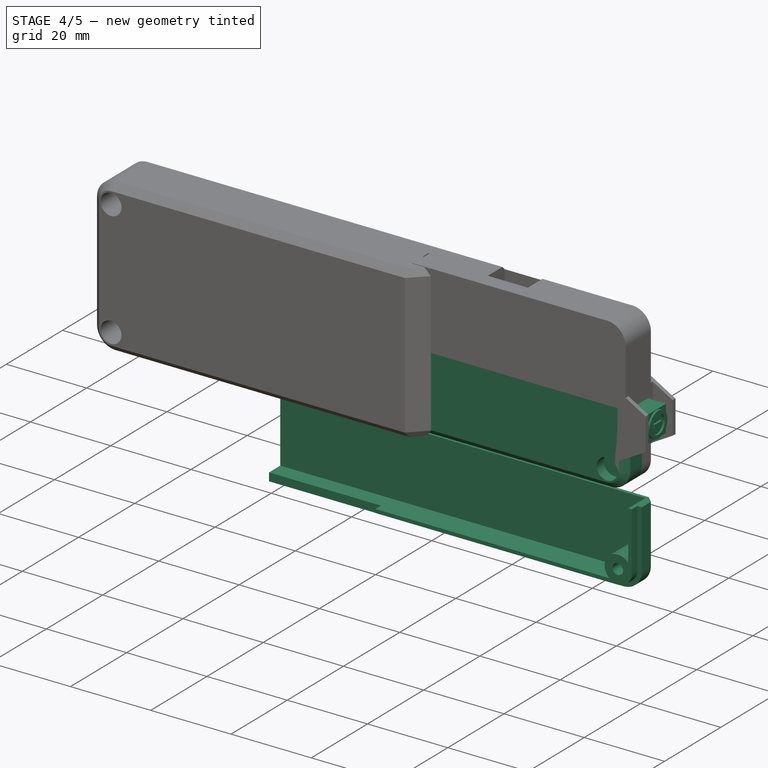
[diagram: stage 4 of 5 — iso view after this stage's code; geometry added in this stage tinted green]
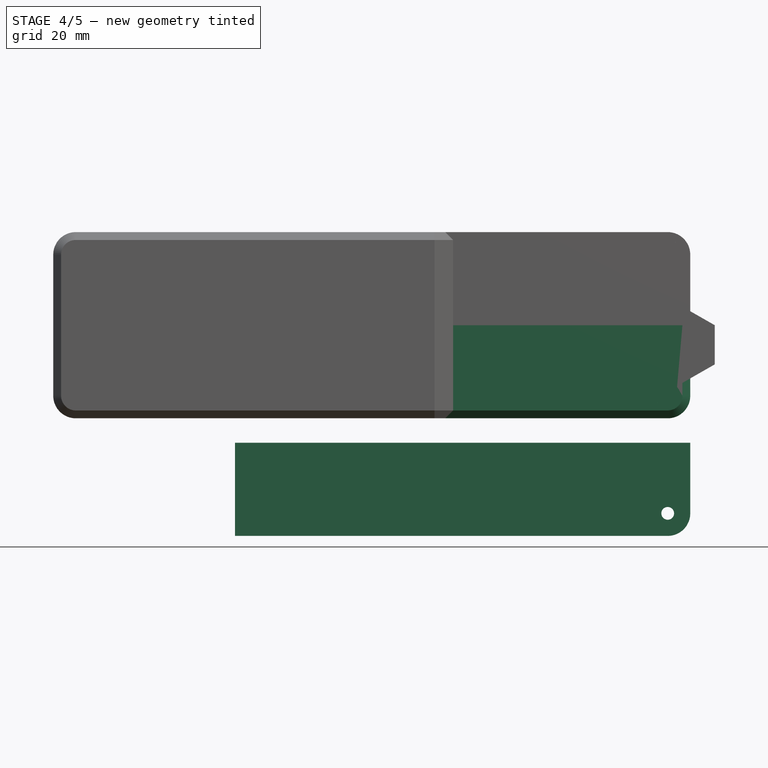
[diagram: stage 4 of 5 — front view after this stage's code; geometry added in this stage tinted green]
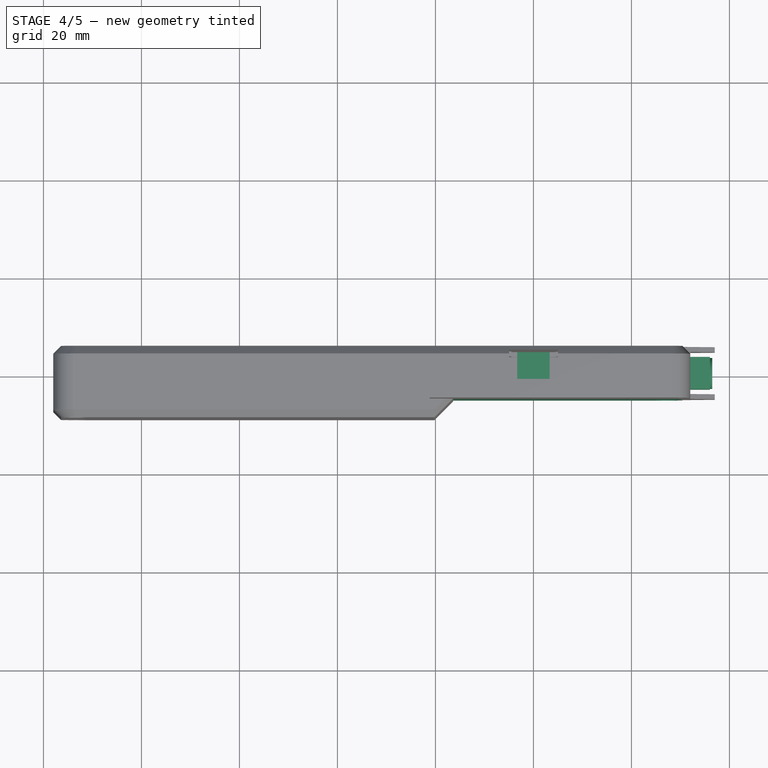
[diagram: stage 4 of 5 — top view after this stage's code; geometry added in this stage tinted green]
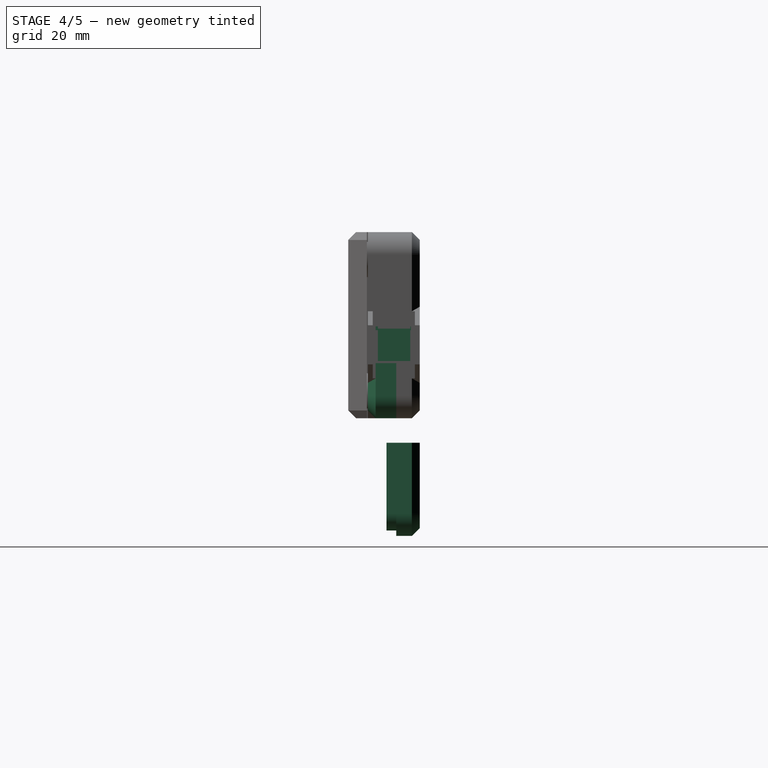
[diagram: stage 4 of 5 — right view after this stage's code; geometry added in this stage tinted green]
FEATURE [PartDesign::FeatureBase] Clone003
  BaseFeature = -> Revolve
FEATURE [Part::Box] Box083  label="cap"
  AttacherType = Attacher::AttachEngine3D
  Height = 1
  Length = 6.6
  Placement = pos=(-3.3,-4.3,11) rot=(0,0,1;0rad)
  Width = 8.6
FEATURE [Sketcher::SketchObject] Sketch013
  FullyConstrained = true
  Placement = pos=(0,-10,0) rot=(1,0,0;1.5708rad)
  sketch-geometry (8):
    g0: LineSegment StartX=-3.3 StartY=7 StartZ=0 EndX=3.3 EndY=7 EndZ=0
    g1: LineSegment StartX=3.3 StartY=7 StartZ=0 EndX=3.3 EndY=1 EndZ=0
    g2: LineSegment StartX=3.3 StartY=1 StartZ=0 EndX=4.3 EndY=1 EndZ=0
    g3: LineSegment StartX=4.3 StartY=1 StartZ=0 EndX=4.3 EndY=0 EndZ=0
    g4: LineSegment StartX=4.3 StartY=0 StartZ=0 EndX=-4.3 EndY=0 EndZ=0
    g5: LineSegment StartX=-4.3 StartY=0 StartZ=0 EndX=-4.3 EndY=1 EndZ=0
    g6: LineSegment StartX=-4.3 StartY=1 StartZ=0 EndX=-3.3 EndY=1 EndZ=0
    g7: LineSegment StartX=-3.3 StartY=1 StartZ=0 EndX=-3.3 EndY=7 EndZ=0
  constraints (24):
    c: Horizontal(g0)
    c: Coincident(g0,g1)
    c: Vertical(g1)
    c: Coincident(g1,g2)
    c: Horizontal(g2)
    c: Coincident(g2,g3)
    c: Vertical(g3)
    c: Coincident(g3,g4)
    c: Horizontal(g4)
    c: Coincident(g4,g5)
    c: Vertical(g5)
    c: Coincident(g5,g6)
    c: Horizontal(g6)
    c: Coincident(g6,g7)
    c: Coincident(g7,g0)
    c: Vertical(g7)
    c: DistanceX(g6,g0) = 6.6
    c: DistanceY(g6,g0) = 6
    c: DistanceX(g4,g6) = 1
    c: DistanceY(g4,g6) = 1
    c: DistanceX(g3,g1) = -1
    c: DistanceY(g3,g1) = 1
    c: PointOnObject(g-1,g4)
    c: DistanceX(g-1,g3) = 4.3
FEATURE [Part::Extrusion] Extrude014
  Base = -> Sketch013
  Dir = (0,-1,-2e-16)
  DirMode = 2
  FaceMakerClass = Part::FaceMakerBullseye
  LengthFwd = 0
  LengthRev = 6.6
  Placement = pos=(0,6.75,0) rot=(0,0,1;0rad)
  Solid = true
  Symmetric = false
FEATURE [Sketcher::SketchObject] Sketch014
  FullyConstrained = true
  Placement = pos=(0,0,-10) rot=(1,0,0;3.14159rad)
  sketch-geometry (4):
    g0: LineSegment StartX=-1.25 StartY=1.75 StartZ=0 EndX=1.25 EndY=1.75 EndZ=0
    g1: LineSegment StartX=1.25 StartY=1.75 StartZ=0 EndX=1.25 EndY=-1.75 EndZ=0
    g2: LineSegment StartX=1.25 StartY=-1.75 StartZ=0 EndX=-1.25 EndY=-1.75 EndZ=0
    g3: LineSegment StartX=-1.25 StartY=-1.75 StartZ=0 EndX=-1.25 EndY=1.75 EndZ=0
  constraints (12):
    c: Coincident(g0,g1)
    c: Coincident(g1,g2)
    c: Coincident(g2,g3)
    c: Coincident(g3,g0)
    c: Horizontal(g0)
    c: Horizontal(g2)
    c: Vertical(g1)
    c: Vertical(g3)
    c: DistanceX(g2,g0) = 2.5
    c: DistanceY(g2,g0) = 3.5
    c: DistanceX(g0,g-1) = -1.25
    c: DistanceY(g0,g-1) = -1.75
FEATURE [Part::Extrusion] Extrude015
  Base = -> Sketch014
  Dir = (0,1e-16,-1)
  DirMode = 2
  FaceMakerClass = Part::FaceMakerBullseye
  LengthFwd = 0
  LengthRev = 4.5
  Placement = pos=(0,0,10) rot=(0,0,1;0rad)
  Solid = true
  Symmetric = false
FEATURE [Part::Cut] Cut023
  Base = -> Extrude014
  Tool = -> Extrude015
FEATURE [Sketcher::SketchObject] Sketch027  label="power icon"
  FullyConstrained = false
  Placement = pos=(0,0,20) rot=(0,0,1;0rad)
  sketch-geometry (6):
    g0: Circle CenterX=0 CenterY=0 CenterZ=0 NormalX=0 NormalY=0 NormalZ=1 AngleXU=0 Radius=3.16228
    g1: Circle CenterX=0 CenterY=0 CenterZ=0 NormalX=0 NormalY=0 NormalZ=1 AngleXU=0 Radius=2.23607
    g2: LineSegment StartX=-0.481583 StartY=1.30821 StartZ=0 EndX=0.471178 EndY=1.30821 EndZ=0
    g3: LineSegment StartX=0.471178 StartY=1.30821 StartZ=0 EndX=0.471178 EndY=-1.31188 EndZ=0
    g4: LineSegment StartX=0.471178 StartY=-1.31188 StartZ=0 EndX=-0.481583 EndY=-1.31188 EndZ=0
    g5: LineSegment StartX=-0.481583 StartY=-1.31188 StartZ=0 EndX=-0.481583 EndY=1.30821 EndZ=0
  constraints (10):
    c: Coincident(g0,g-1)
    c: Coincident(g1,g0)
    c: Coincident(g2,g3)
    c: Coincident(g3,g4)
    c: Coincident(g4,g5)
    c: Coincident(g5,g2)
    c: Horizontal(g2)
    c: Horizontal(g4)
    c: Vertical(g3)
    c: Vertical(g5)
FEATURE [Part::Extrusion] Extrude036  label="power icon001"
  Base = -> Sketch027
  Dir = (0,0,1)
  DirMode = 2
  FaceMakerClass = Part::FaceMakerBullseye
  LengthFwd = 0.5
  LengthRev = 0
  Placement = pos=(0,0,-13) rot=(0,0,1;3.14159rad)
  Solid = true
  Symmetric = false
FEATURE [Part::Compound] Compound003  label="power"
  Links = -> [Cut023,Extrude036]
  Placement = pos=(29,0,8) rot=(0,1,0;1.5708rad)
FEATURE [Part::Box] Box  label="circuit"
  AttacherType = Attacher::AttachEngine3D
  Height = 27
  Length = 25
  Placement = pos=(-34,3.5,-1) rot=(0,0,1;0rad)
  Width = 1
FEATURE [Part::Box] Box086  label="xbee"
  AttacherType = Attacher::AttachEngine3D
  Height = 34
  Length = 25
  Placement = pos=(-59,3.5,-5) rot=(0,0,1;0rad)
  Width = 1
FEATURE [Part::Box] Box087  label="battery"
  AttacherType = Attacher::AttachEngine3D
  Height = 34
  Length = 30
  Placement = pos=(-89,3.5,-5) rot=(0,0,1;0rad)
  Width = 1
FEATURE [Part::MultiFuse] Fusion029  label="bottom005"
  Shapes = -> [Extrude038,Body003,Extrude055,Extrude056]
FEATURE [Part::Cut] Cut  label="bottom"
  Base = -> Fusion029
  Tool = -> Fusion
FEATURE [Part::Mirroring] Part__Mirroring004  label="bottom (Mirror #5)"
  Base = (0,0,12)
  Normal = (0,0,1)
  Source = -> Cut
FEATURE [Part::MultiFuse] Fusion031  label="bottom006"
  Shapes = -> [Part__Mirroring004,Cut]
FEATURE [Part::Cut] Cut026  label="bottom007"
  Base = -> Fusion031
  Tool = -> Fusion033
FEATURE [Part::Mirroring] Part__Mirroring001  label="top (Mirror #2)"
  Base = (0,0,0)
  Normal = (0,0,1)
  Source = -> Cut024
FEATURE [Part::Compound] Compound  label="bottom008"
  Links = -> [Cut026,Extrude047,Cut027,Part__Mirroring005]
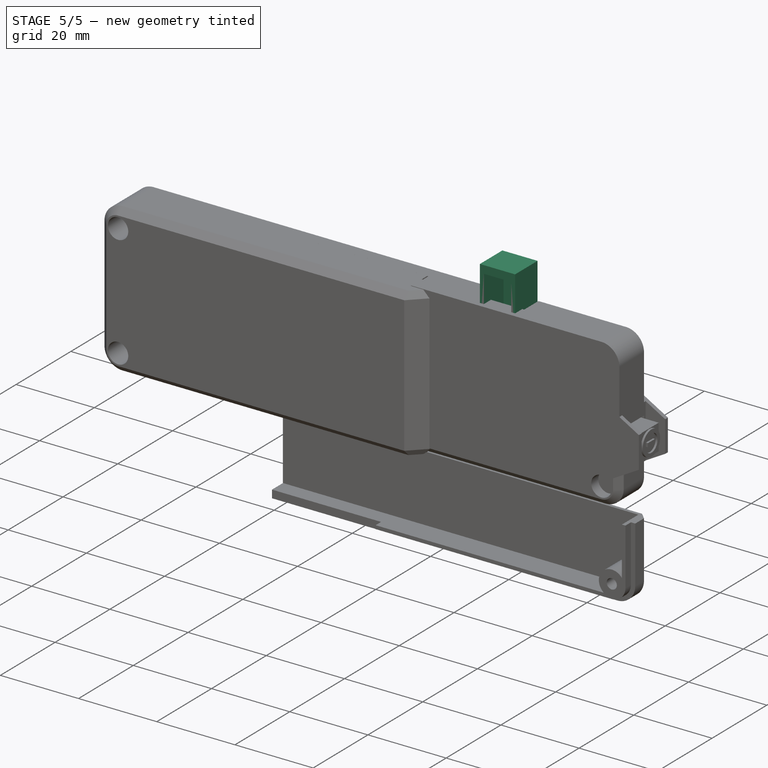
[diagram: stage 5 of 5 — iso view after this stage's code; geometry added in this stage tinted green]
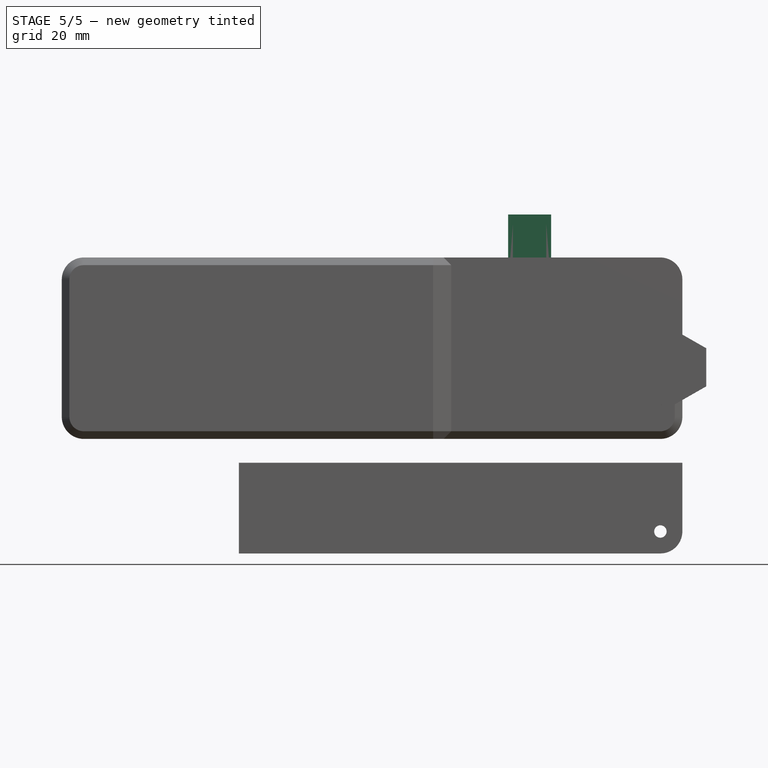
[diagram: stage 5 of 5 — front view after this stage's code; geometry added in this stage tinted green]
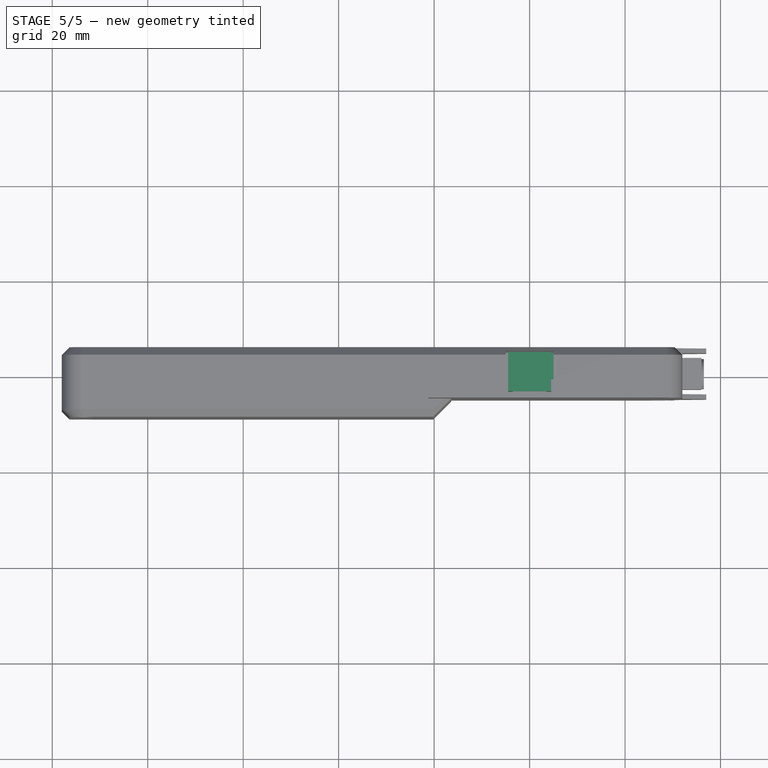
[diagram: stage 5 of 5 — top view after this stage's code; geometry added in this stage tinted green]
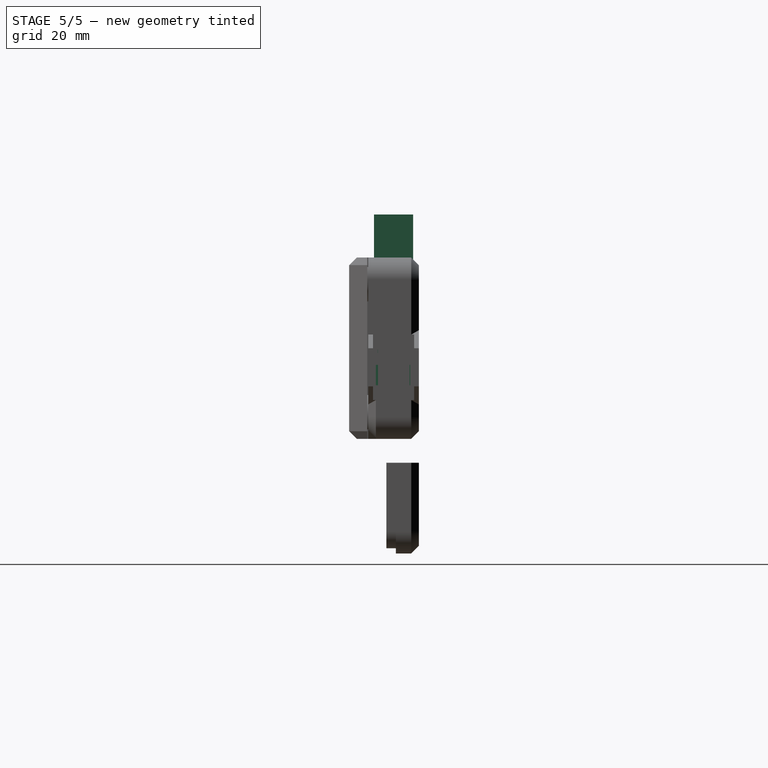
[diagram: stage 5 of 5 — right view after this stage's code; geometry added in this stage tinted green]
FEATURE [Part::Box] Box074  label="Cube"
  AttacherType = Attacher::AttachEngine3D
  Height = 8.5
  Length = 8.5
  Placement = pos=(-4.25,-4.25,0) rot=(0,0,1;0rad)
  Width = 8.5
FEATURE [Part::Box] Box075  label="plunger"
  AttacherType = Attacher::AttachEngine3D
  Height = 5.5
  Length = 4
  Placement = pos=(-2,-2,5.7) rot=(0,0,1;0rad)
  Width = 4
FEATURE [Part::Box] Box076  label="pins"
  AttacherType = Attacher::AttachEngine3D
  Height = 3.5
  Length = 8.5
  Placement = pos=(-4.25,-4.25,-3.5) rot=(0,0,1;0rad)
  Width = 8.5
FEATURE [Part::Box] Box078  label="plunger001"
  AttacherType = Attacher::AttachEngine3D
  Height = 3
  Length = 2
  Placement = pos=(-1,-1.5,11.2) rot=(0,0,1;0rad)
  Width = 3
FEATURE [Part::MultiFuse] Fusion024  label="switch master"
  Shapes = -> [Box074,Box075,Box076,Box078]
FEATURE [PartDesign::FeatureBase] Clone
  BaseFeature = -> Fusion024
FEATURE [PartDesign::Body] Body  label="switch002"
  BaseFeature = -> Fusion024
  Group = -> [Clone]
  Origin = -> Origin
  Tip = -> Clone
FEATURE [PartDesign::FeatureBase] Clone001
  BaseFeature = -> Fusion024
FEATURE [PartDesign::Body] Body001  label="switch001"
  BaseFeature = -> Fusion024
  Group = -> [Clone001]
  Origin = -> Origin001
  Placement = pos=(8.5,0,5) rot=(0,0,1;0rad)
  Tip = -> Clone001
FEATURE [Part::Cylinder] Cylinder  label="spring"
  Angle = 360
  AttacherType = Attacher::AttachEngine3D
  Height = 13
  Placement = pos=(0,0,11.2) rot=(0,0,1;0rad)
  Radius = 2
FEATURE [Sketcher::SketchObject] Sketch
  FullyConstrained = true
  Placement = pos=(0,-4.5,0) rot=(1,0,0;1.5708rad)
  sketch-geometry (16):
    g0: LineSegment StartX=-6.5 StartY=23 StartZ=0 EndX=-3.5 EndY=23 EndZ=0
    g1: LineSegment StartX=-3.5 StartY=23 StartZ=0 EndX=-3.5 EndY=16 EndZ=0
    g2: LineSegment StartX=-3.5 StartY=16 StartZ=0 EndX=-2.5 EndY=16 EndZ=0
    g3: LineSegment StartX=-2.5 StartY=16 StartZ=0 EndX=-2.5 EndY=23 EndZ=0
    g4: LineSegment StartX=-2.5 StartY=23 StartZ=0 EndX=2.5 EndY=23 EndZ=0
    g5: LineSegment StartX=2.5 StartY=23 StartZ=0 EndX=2.5 EndY=16 EndZ=0
    g6: LineSegment StartX=2.5 StartY=16 StartZ=0 EndX=3.5 EndY=17 EndZ=0
    g7: LineSegment StartX=3.5 StartY=17 StartZ=0 EndX=3.5 EndY=24 EndZ=0
    g8: LineSegment StartX=3.5 StartY=24 StartZ=0 EndX=12.5 EndY=24 EndZ=0
    g9: LineSegment StartX=12.5 StartY=24 StartZ=0 EndX=12.5 EndY=25 EndZ=0
    g10: LineSegment StartX=12.5 StartY=25 StartZ=0 EndX=4.5 EndY=25 EndZ=0
    g11: LineSegment StartX=4.5 StartY=25 StartZ=0 EndX=4.5 EndY=40 EndZ=0
    g12: LineSegment StartX=4.5 StartY=40 StartZ=0 EndX=-4.5 EndY=40 EndZ=0
    g13: LineSegment StartX=-4.5 StartY=40 StartZ=0 EndX=-4.5 EndY=25 EndZ=0
    g14: LineSegment StartX=-4.5 StartY=25 StartZ=0 EndX=-6.5 EndY=25 EndZ=0
    g15: LineSegment StartX=-6.5 StartY=25 StartZ=0 EndX=-6.5 EndY=23 EndZ=0
  constraints (48):
    c: Horizontal(g0)
    c: Coincident(g0,g1)
    c: Vertical(g1)
    c: Coincident(g1,g2)
    c: Horizontal(g2)
    c: Coincident(g2,g3)
    c: Vertical(g3)
    c: Coincident(g3,g4)
    c: Horizontal(g4)
    c: Coincident(g4,g5)
    c: Vertical(g5)
    c: Coincident(g5,g6)
    c: Coincident(g6,g7)
    c: Vertical(g7)
    c: Coincident(g7,g8)
    c: Horizontal(g8)
    c: Coincident(g8,g9)
    c: Vertical(g9)
    c: Coincident(g9,g10)
    c: Horizontal(g10)
    c: Coincident(g10,g11)
    c: Vertical(g11)
    c: Coincident(g11,g12)
    c: Horizontal(g12)
    c: Coincident(g12,g13)
    c: Vertical(g13)
    c: Coincident(g13,g14)
    c: Horizontal(g14)
    c: Coincident(g14,g15)
    c: Vertical(g15)
    c: Coincident(g0,g15)
    c: Horizontal(g10,g13)
    c: DistanceY(g8,g9) = 1
    c: DistanceX(g5,g6) = 1
    c: DistanceX(g1,g2) = 1
    c: DistanceX(g3,g4) = 5
    c: DistanceX(g0,g0) = 3
    c: DistanceX(g8,g8) = 9
    c: DistanceX(g0,g-1) = 6.5
    c: DistanceY(g0,g-1) = -23
    c: DistanceX(g14,g13) = 2
    c: DistanceX(g13,g11) = 9
    c: DistanceY(g13,g11) = 15
    c: Horizontal(g2,g5)
    c: DistanceY(g6,g7) = 7
    c: DistanceY(g1,g0) = 7
    c: DistanceY(g2,g3) = 7
    c: DistanceY(g5,g6) = 1
FEATURE [Part::Extrusion] Extrude  label="button"
  Base = -> Sketch
  Dir = (0,-1,2e-16)
  DirMode = 2
  FaceMakerClass = Part::FaceMakerBullseye
  LengthFwd = 0
  LengthRev = 8.2
  Placement = pos=(0,0.4,0) rot=(0,0,1;0rad)
  Solid = true
  Symmetric = false
FEATURE [Sketcher::SketchObject] Sketch011
  FullyConstrained = true
  Placement = pos=(0,-4.5,0) rot=(1,0,0;1.5708rad)
  sketch-geometry (4):
    g0: LineSegment StartX=-3.5 StartY=38 StartZ=0 EndX=3.5 EndY=38 EndZ=0
    g1: LineSegment StartX=3.5 StartY=38 StartZ=0 EndX=3.5 EndY=24 EndZ=0
    g2: LineSegment StartX=3.5 StartY=24 StartZ=0 EndX=-3.5 EndY=24 EndZ=0
    g3: LineSegment StartX=-3.5 StartY=24 StartZ=0 EndX=-3.5 EndY=38 EndZ=0
  constraints (12):
    c: Coincident(g0,g1)
    c: Coincident(g1,g2)
    c: Coincident(g2,g3)
    c: Coincident(g3,g0)
    c: Horizontal(g0)
    c: Horizontal(g2)
    c: Vertical(g1)
    c: Vertical(g3)
    c: DistanceX(g2,g0) = 7
    c: DistanceY(g2,g0) = 14
    c: DistanceX(g-1,g1) = 3.5
    c: DistanceY(g-1,g0) = 38
FEATURE [Part::Extrusion] Extrude012
  Base = -> Sketch011
  Dir = (0,-1,2e-16)
  DirMode = 2
  FaceMakerClass = Part::FaceMakerBullseye
  LengthFwd = 10
  LengthRev = 0
  Placement = pos=(0,7.6,0) rot=(0,0,1;0rad)
  Solid = true
  Symmetric = false
FEATURE [Part::Cut] Cut001  label="button001"
  Base = -> Extrude
  Tool = -> Extrude012
FEATURE [Sketcher::SketchObject] Sketch012
  FullyConstrained = true
  Placement = pos=(0,-10,0) rot=(1,0,0;1.5708rad)
  sketch-geometry (13):
    g0: LineSegment StartX=-4.5 StartY=25 StartZ=0 EndX=4.5 EndY=25 EndZ=0
    g1: LineSegment StartX=4.5 StartY=25 StartZ=0 EndX=4.5 EndY=24 EndZ=0
    g2: LineSegment StartX=4.5 StartY=24 StartZ=0 EndX=12.5 EndY=24 EndZ=0
    g3: LineSegment StartX=12.5 StartY=24 StartZ=0 EndX=12.5 EndY=21 EndZ=0
    g4: LineSegment StartX=12.5 StartY=21 StartZ=0 EndX=3 EndY=21 EndZ=0
    g5: LineSegment StartX=3 StartY=21 StartZ=0 EndX=3 EndY=16.5 EndZ=0
    g6: LineSegment StartX=2.5 StartY=16 StartZ=0 EndX=-3 EndY=16 EndZ=0
    g7: LineSegment StartX=-3 StartY=16 StartZ=0 EndX=-3 EndY=21 EndZ=0
    g8: LineSegment StartX=-3 StartY=21 StartZ=0 EndX=-6.5 EndY=21 EndZ=0
    g9: LineSegment StartX=-6.5 StartY=21 StartZ=0 EndX=-6.5 EndY=24 EndZ=0
    g10: LineSegment StartX=-6.5 StartY=24 StartZ=0 EndX=-4.5 EndY=24 EndZ=0
    g11: LineSegment StartX=-4.5 StartY=24 StartZ=0 EndX=-4.5 EndY=25 EndZ=0
    g12: LineSegment StartX=2.5 StartY=16 StartZ=0 EndX=3 EndY=16.5 EndZ=0
  constraints (39):
    c: Horizontal(g0)
    c: Coincident(g0,g1)
    c: Coincident(g1,g2)
    c: Horizontal(g2)
    c: Coincident(g2,g3)
    c: Vertical(g3)
    c: Coincident(g3,g4)
    c: Horizontal(g4)
    c: Coincident(g4,g5)
    c: Vertical(g5)
    c: Horizontal(g6)
    c: Coincident(g6,g7)
    c: Vertical(g7)
    c: Coincident(g7,g8)
    c: Horizontal(g8)
    c: Coincident(g8,g9)
    c: Vertical(g9)
    c: Coincident(g9,g10)
    c: Horizontal(g10)
    c: Coincident(g10,g11)
    c: Coincident(g11,g0)
    c: Vertical(g1)
    c: Vertical(g11)
    c: DistanceX(g0,g0) = 9
    c: DistanceX(g8,g10) = 2
    c: DistanceY(g8,g10) = 3
    c: DistanceX(g6,g5) = 6
    c: DistanceX(g8,g7) = 3.5
    c: DistanceX(g1,g2) = 8
    c: DistanceY(g3,g2) = 3
    c: DistanceY(g-1,g4) = 21
    c: DistanceX(g-1,g4) = 3
    c: DistanceY(g10,g0) = 1
    c: DistanceY(g7,g7) = 5
    c: DistanceY(g5,g4) = 4.5
    c: DistanceX(g6) = 2.5
    c: Coincident(g12,g6)
    c: Coincident(g12,g5)
    c: Horizontal(g7,g4)
FEATURE [Part::Extrusion] Extrude013
  Base = -> Sketch012
  Dir = (0,-1,2e-16)
  DirMode = 2
  FaceMakerClass = Part::FaceMakerBullseye
  LengthFwd = 1
  LengthRev = 0
  Placement = pos=(0,14.1,0) rot=(0,0,1;0rad)
  Solid = true
  Symmetric = false
FEATURE [Part::Compound] Compound002  label="button002"
  Links = -> [Cut001,Extrude013]
FEATURE [PartDesign::FeatureBase] Clone004
  BaseFeature = -> Fusion024
FEATURE [PartDesign::Body] Body004  label="switch"
  BaseFeature = -> Fusion024
  Group = -> [Clone004]
  Origin = -> Origin004
  Placement = pos=(17.5,0,8) rot=(0,1,0;1.5708rad)
  Tip = -> Clone004
FEATURE [Part::Box] Box085  label="sub cap"
  AttacherType = Attacher::AttachEngine3D
  Height = 4.5
  Length = 3.5
  Placement = pos=(-1.75,-1.25,0) rot=(0,0,1;0rad)
  Width = 2.5
FEATURE [Part::Box] Box084  label="cap001"
  AttacherType = Attacher::AttachEngine3D
  Height = 7
  Length = 6.6
  Placement = pos=(-3.3,-3.3,11) rot=(0,0,1;0rad)
  Width = 6.6
FEATURE [Part::MultiFuse] Fusion023
  Shapes = -> [Box084,Box083]
FEATURE [Part::Cut] Cut022  label="switch cap master"
  Base = -> Fusion023
  Placement = pos=(0,0,0) rot=(0,0,-1;1.5708rad)
  Tool = -> Box085
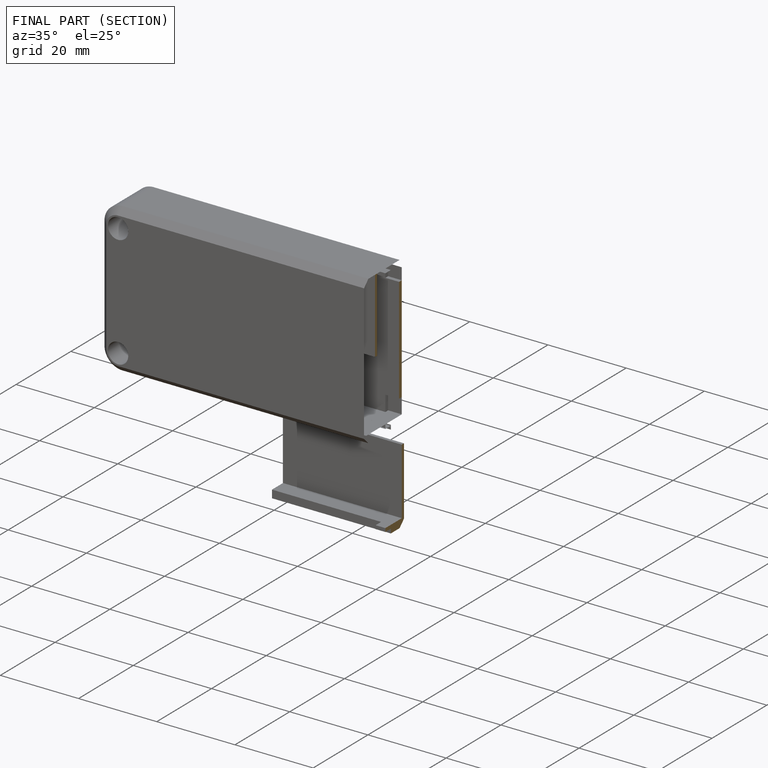
[diagram: finished part — half-section view (interior)]
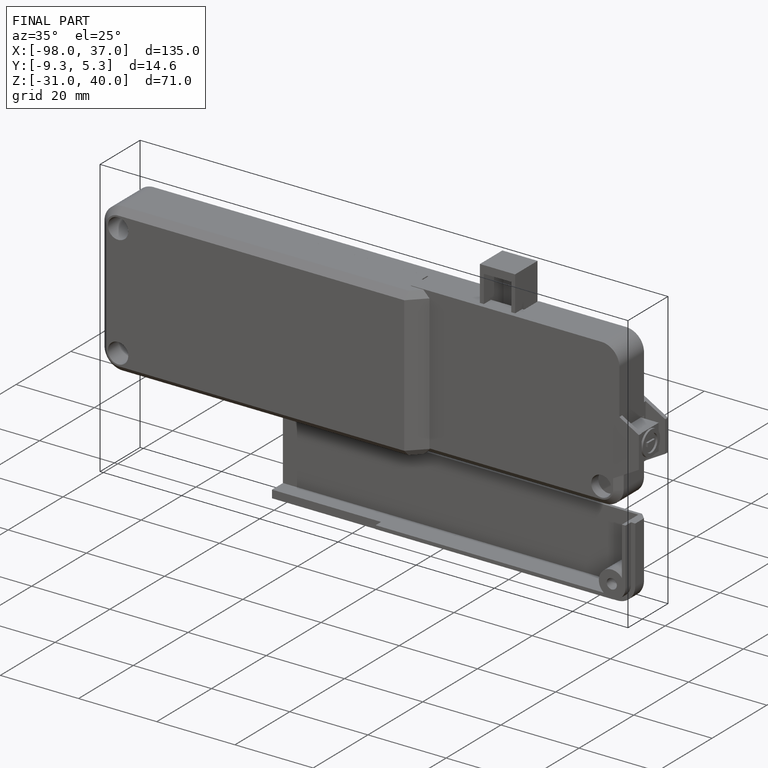
[diagram: finished part — iso view with bounding-box wireframe]
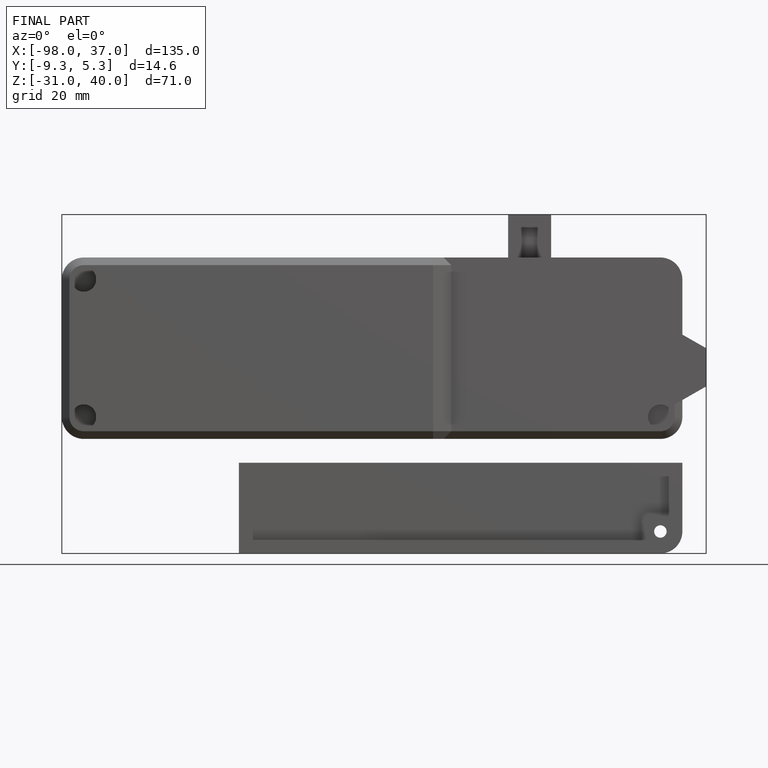
[diagram: finished part — front view with bounding-box wireframe]
